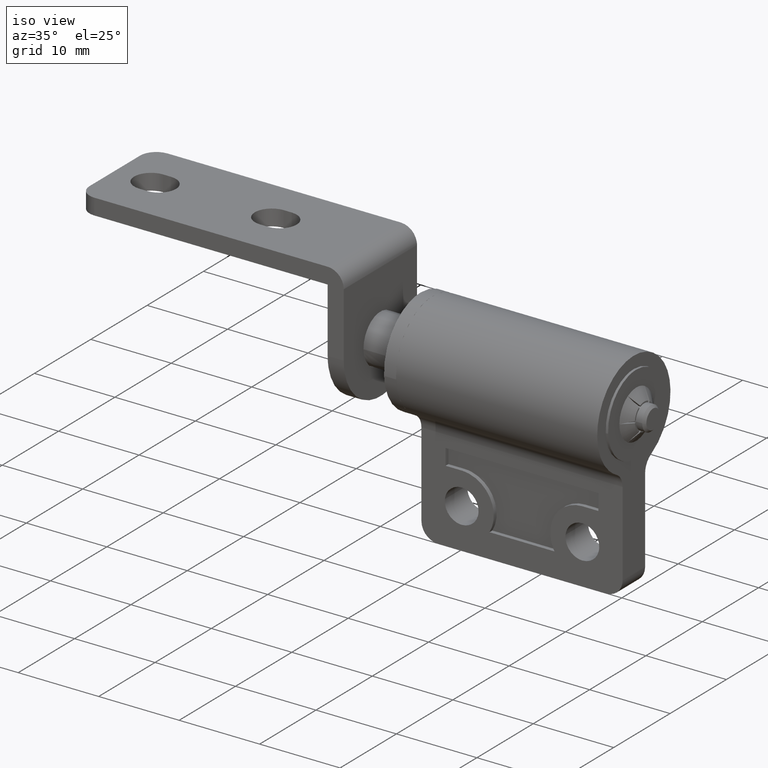
[diagram: clean part render]
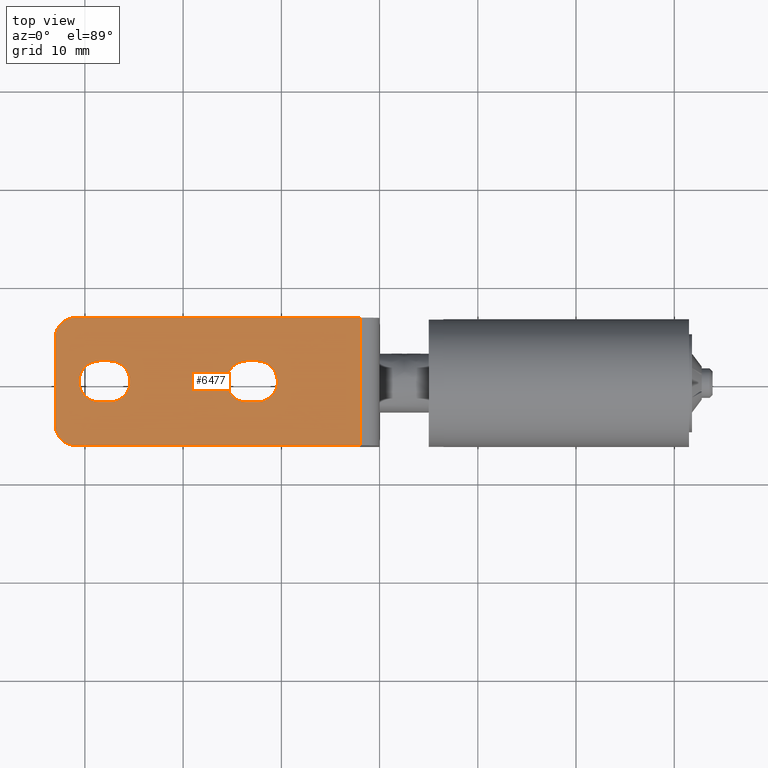
[diagram: tour spotlight — one face highlighted and labeled with its STEP entity id]
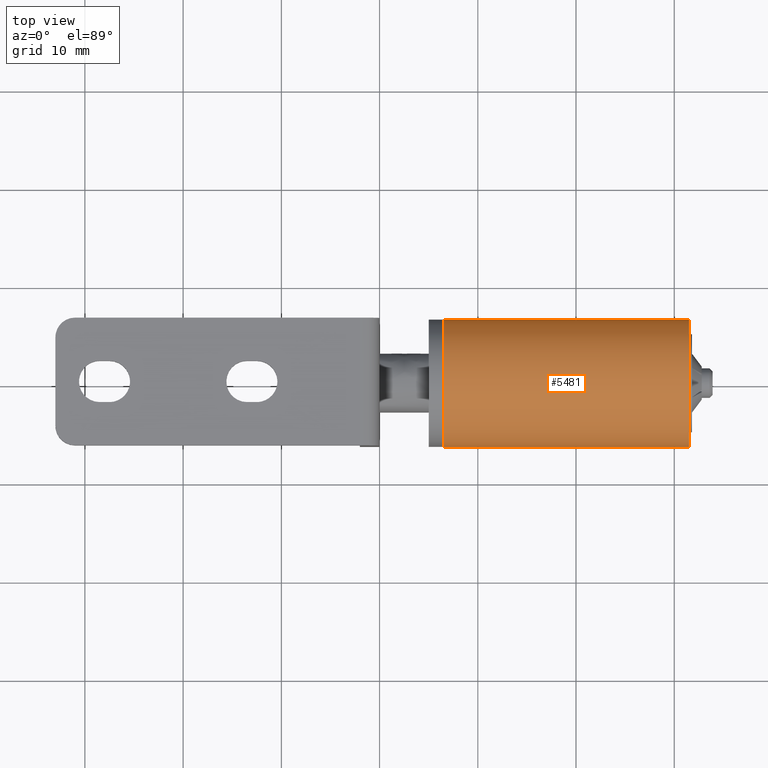
[diagram: tour spotlight — one face highlighted and labeled with its STEP entity id]
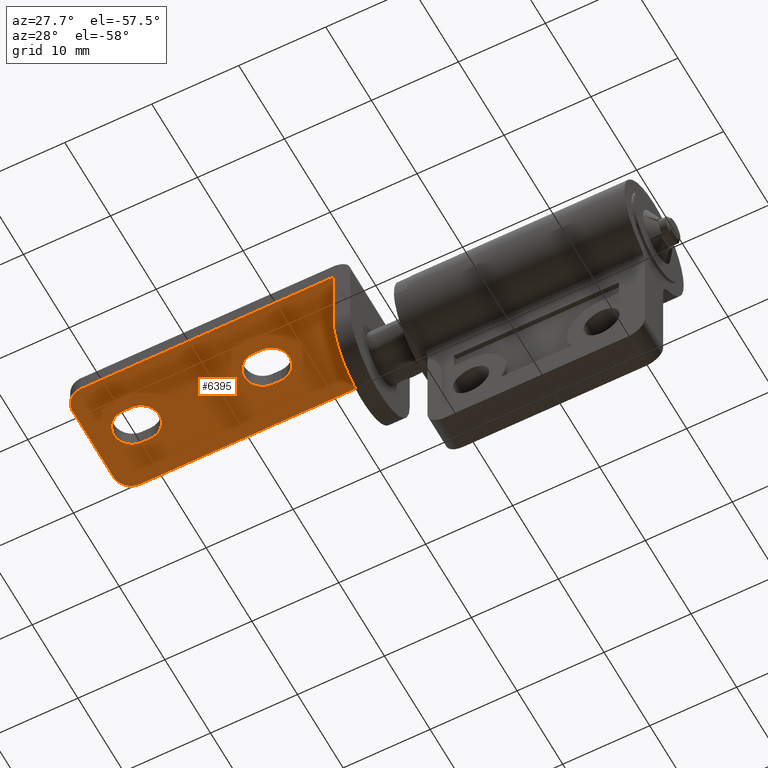
[diagram: tour spotlight — one face highlighted and labeled with its STEP entity id]
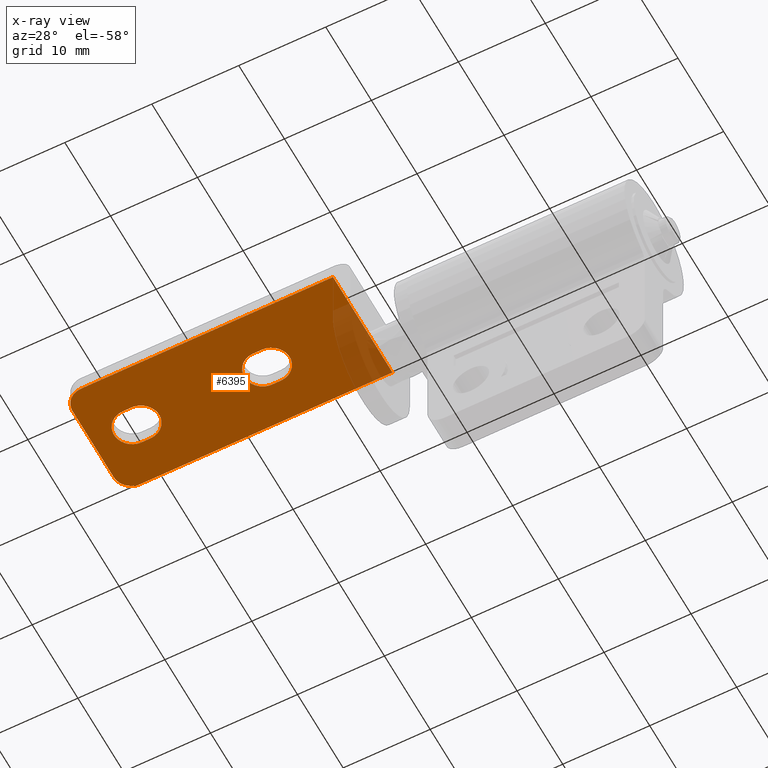
[diagram: x-ray of the same camera — body ghosted, this tour face saturated]
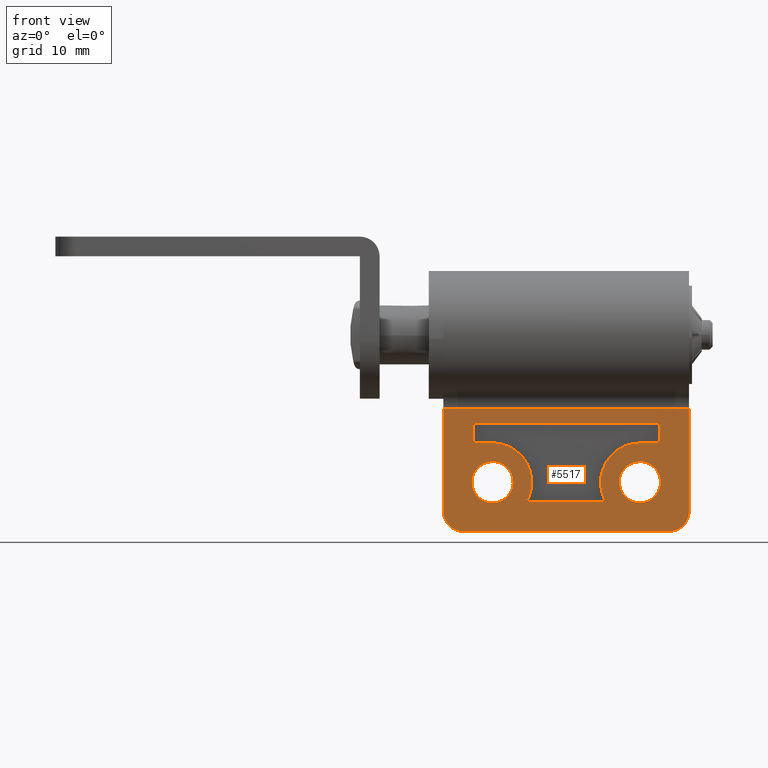
[diagram: tour spotlight — one face highlighted and labeled with its STEP entity id]
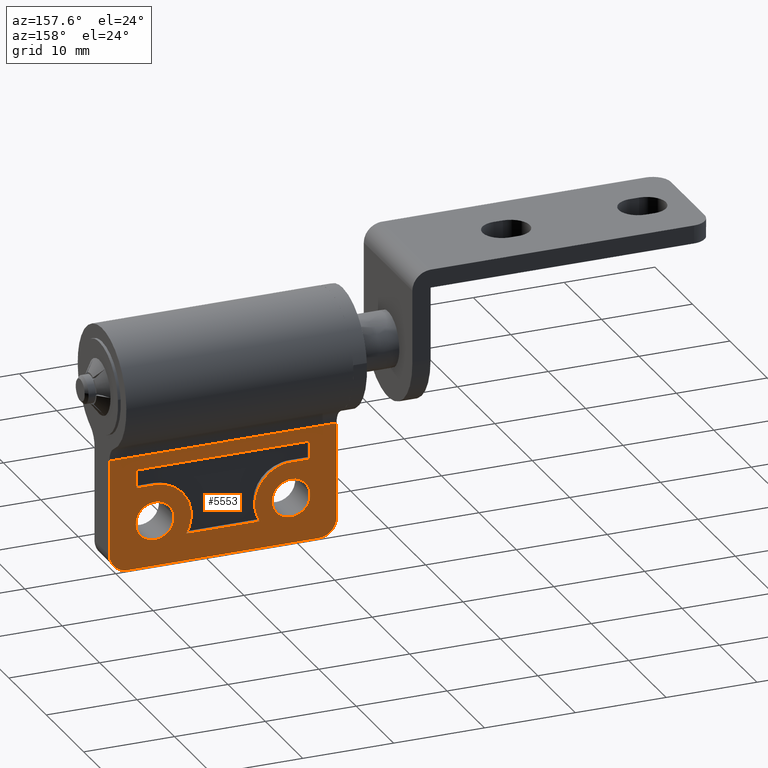
[diagram: tour spotlight — one face highlighted and labeled with its STEP entity id]
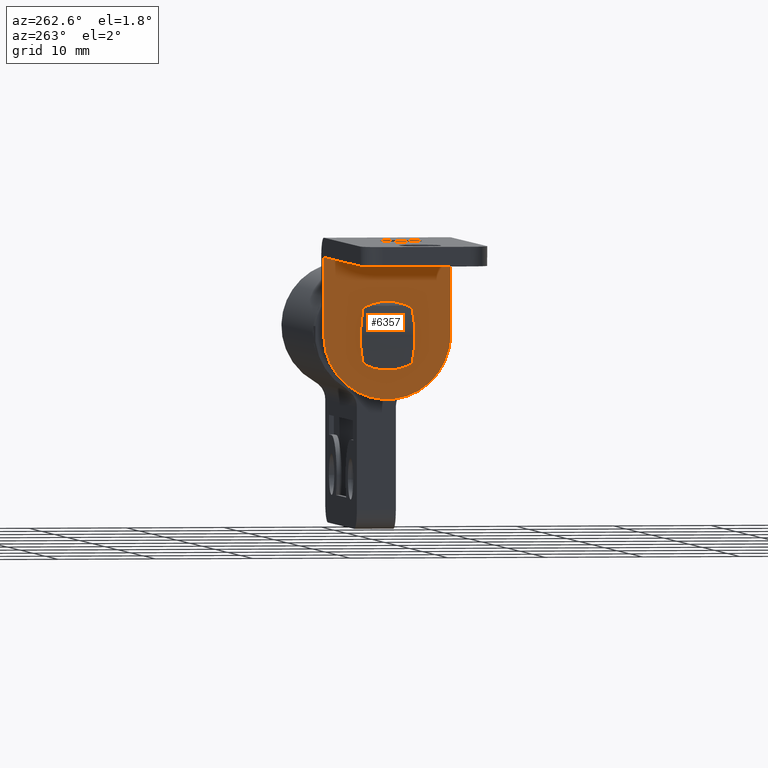
[diagram: tour spotlight — one face highlighted and labeled with its STEP entity id]
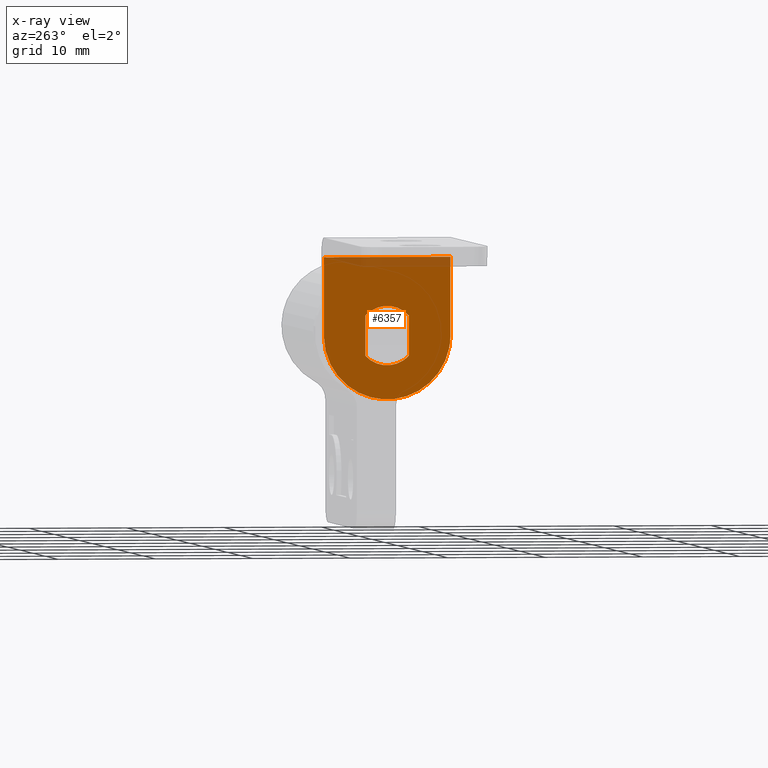
[diagram: x-ray of the same camera — body ghosted, this tour face saturated]
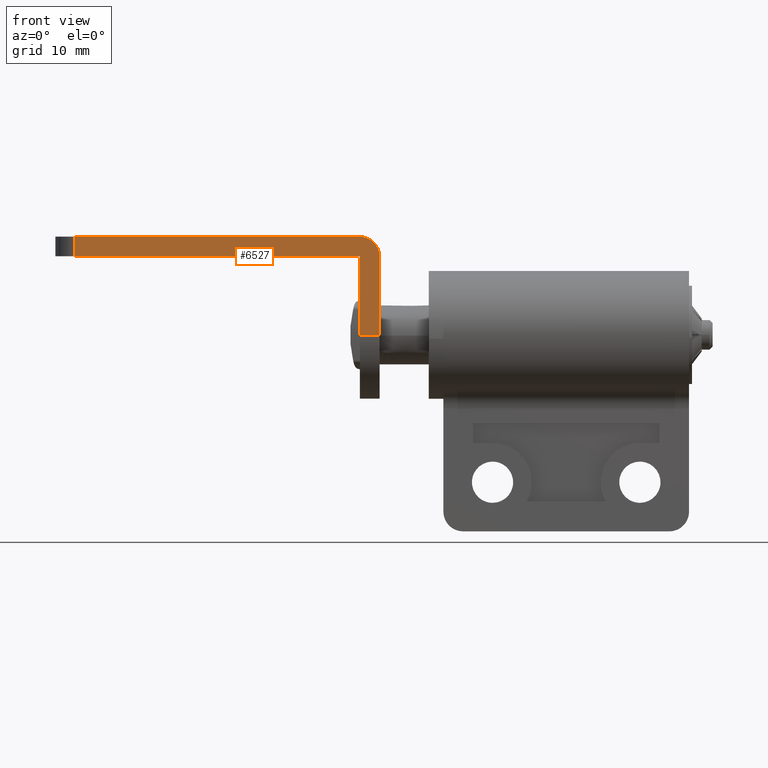
[diagram: tour spotlight — one face highlighted and labeled with its STEP entity id]
A machine part: a face-by-face anatomy tour. The part has 137 B-rep faces; the first image is the clean iso view, then the 7 largest visible faces are spotlighted one at a time (largest first), each with its STEP entity span.

Face 1 — top view, entity #6477. In plain terms, the highlighted face is a freeform B-spline surface patch.
Definition (entity closure, byte-faithful):
#5611=CARTESIAN_POINT('',(-2.0,-6.500000000000000,10.0));
#5612=VERTEX_POINT('',#5611);
#5633=CARTESIAN_POINT('',(-2.0,6.500000000000000,10.0));
#5634=VERTEX_POINT('',#5633);
#5648=CARTESIAN_POINT('',(-2.0,-6.500000000000000,10.0));
#5649=CARTESIAN_POINT('',(-2.0,6.500000000000000,10.0));
#5650=QUASI_UNIFORM_CURVE('',1,(#5648,#5649),.UNSPECIFIED.,.F.,.U.);
#5651=EDGE_CURVE('',#5612,#5634,#5650,.T.);
#5670=CARTESIAN_POINT('',(-31.0,6.500000000000000,10.0));
#5671=VERTEX_POINT('',#5670);
#5672=CARTESIAN_POINT('',(-33.0,4.500000000000000,10.0));
#5673=VERTEX_POINT('',#5672);
#5674=CARTESIAN_POINT('',(-31.0,6.500000000000000,10.0));
#5675=CARTESIAN_POINT('',(-33.0,6.500000000000001,10.000000000000002));
#5676=CARTESIAN_POINT('',(-33.0,4.500000000000000,10.0));
#5684=(BOUNDED_CURVE()B_SPLINE_CURVE(2,(#5674,#5675,#5676),.UNSPECIFIED.,.F.,.U.)CURVE()GEOMETRIC_REPRESENTATION_ITEM()QUASI_UNIFORM_CURVE()RATIONAL_B_SPLINE_CURVE((1.0,0.707106781186548,1.0))REPRESENTATION_ITEM(''));
#5685=EDGE_CURVE('',#5671,#5673,#5684,.T.);
#5748=CARTESIAN_POINT('',(-31.0,-6.500000000000000,10.0));
#5749=VERTEX_POINT('',#5748);
#5755=CARTESIAN_POINT('',(-33.0,-4.500000000000000,10.0));
#5756=VERTEX_POINT('',#5755);
#5757=CARTESIAN_POINT('',(-33.0,-4.500000000000000,10.0));
#5758=CARTESIAN_POINT('',(-33.0,-6.500000000000001,10.000000000000002));
#5759=CARTESIAN_POINT('',(-31.0,-6.500000000000000,10.0));
#5767=(BOUNDED_CURVE()B_SPLINE_CURVE(2,(#5757,#5758,#5759),.UNSPECIFIED.,.F.,.U.)CURVE()GEOMETRIC_REPRESENTATION_ITEM()QUASI_UNIFORM_CURVE()RATIONAL_B_SPLINE_CURVE((1.0,0.707106781186548,1.0))REPRESENTATION_ITEM(''));
#5768=EDGE_CURVE('',#5756,#5749,#5767,.T.);
#5962=CARTESIAN_POINT('',(-27.500007000000100,2.100000000000000,10.0));
#5963=VERTEX_POINT('',#5962);
#5969=CARTESIAN_POINT('',(-28.500006999999950,2.100000000000000,10.0));
#5970=VERTEX_POINT('',#5969);
#5971=CARTESIAN_POINT('',(-28.500006999999950,2.100000000000000,10.0));
#5972=CARTESIAN_POINT('',(-27.500007000000100,2.100000000000000,10.0));
#5973=QUASI_UNIFORM_CURVE('',1,(#5971,#5972),.UNSPECIFIED.,.F.,.U.);
#5974=EDGE_CURVE('',#5970,#5963,#5973,.T.);
#6020=CARTESIAN_POINT('',(-28.500006999999950,-2.100000000000000,10.0));
#6021=VERTEX_POINT('',#6020);
#6022=CARTESIAN_POINT('',(-28.500006999999950,-2.100000000000000,10.0));
#6023=CARTESIAN_POINT('',(-30.600006999999952,-2.100000000000000,10.000000000000002));
#6024=CARTESIAN_POINT('',(-30.600006999999952,0.0,10.0));
#6025=CARTESIAN_POINT('',(-30.600006999999952,2.100000000000000,10.000000000000002));
#6026=CARTESIAN_POINT('',(-28.500006999999950,2.100000000000000,10.0));
#6034=(BOUNDED_CURVE()B_SPLINE_CURVE(2,(#6022,#6023,#6024,#6025,#6026),.UNSPECIFIED.,.F.,.U.)B_SPLINE_CURVE_WITH_KNOTS((3,2,3),(0.0,0.500000000000000,1.0),.UNSPECIFIED.)CURVE()GEOMETRIC_REPRESENTATION_ITEM()RATIONAL_B_SPLINE_CURVE((1.0,0.707106781186548,1.0,0.707106781186548,1.0))REPRESENTATION_ITEM(''));
#6035=EDGE_CURVE('',#6021,#5970,#6034,.T.);
#6058=CARTESIAN_POINT('',(-27.500007000000100,-2.100000000000000,10.0));
#6059=VERTEX_POINT('',#6058);
#6060=CARTESIAN_POINT('',(-27.500007000000100,-2.100000000000000,10.0));
#6061=CARTESIAN_POINT('',(-28.500006999999950,-2.100000000000000,10.0));
#6062=QUASI_UNIFORM_CURVE('',1,(#6060,#6061),.UNSPECIFIED.,.F.,.U.);
#6063=EDGE_CURVE('',#6059,#6021,#6062,.T.);
#6107=CARTESIAN_POINT('',(-27.500007000000100,2.100000000000000,10.0));
#6108=CARTESIAN_POINT('',(-25.400007000000102,2.100000000000000,10.000000000000002));
#6109=CARTESIAN_POINT('',(-25.400007000000102,0.0,10.0));
#6110=CARTESIAN_POINT('',(-25.400007000000102,-2.100000000000000,10.000000000000002));
#6111=CARTESIAN_POINT('',(-27.500007000000100,-2.100000000000000,10.0));
#6119=(BOUNDED_CURVE()B_SPLINE_CURVE(2,(#6107,#6108,#6109,#6110,#6111),.UNSPECIFIED.,.F.,.U.)B_SPLINE_CURVE_WITH_KNOTS((3,2,3),(0.0,0.500000000000000,1.0),.UNSPECIFIED.)CURVE()GEOMETRIC_REPRESENTATION_ITEM()RATIONAL_B_SPLINE_CURVE((1.0,0.707106781186548,1.0,0.707106781186548,1.0))REPRESENTATION_ITEM(''));
#6120=EDGE_CURVE('',#5963,#6059,#6119,.T.);
#6140=CARTESIAN_POINT('',(-12.500006999999981,2.100000000000000,10.0));
#6141=VERTEX_POINT('',#6140);
#6147=CARTESIAN_POINT('',(-13.500007000000000,2.100000000000000,10.0));
#6148=VERTEX_POINT('',#6147);
#6149=CARTESIAN_POINT('',(-13.500007000000000,2.100000000000000,10.0));
#6150=CARTESIAN_POINT('',(-12.500006999999981,2.100000000000000,10.0));
#6151=QUASI_UNIFORM_CURVE('',1,(#6149,#6150),.UNSPECIFIED.,.F.,.U.);
#6152=EDGE_CURVE('',#6148,#6141,#6151,.T.);
#6200=CARTESIAN_POINT('',(-13.500007000000000,-2.100000000000000,10.0));
#6201=VERTEX_POINT('',#6200);
#6202=CARTESIAN_POINT('',(-13.500007000000000,-2.100000000000000,10.0));
#6203=CARTESIAN_POINT('',(-15.600007000000000,-2.100000000000000,10.000000000000002));
#6204=CARTESIAN_POINT('',(-15.600007000000000,0.0,10.0));
#6205=CARTESIAN_POINT('',(-15.600007000000000,2.100000000000000,10.000000000000002));
#6206=CARTESIAN_POINT('',(-13.500007000000000,2.100000000000000,10.0));
#6214=(BOUNDED_CURVE()B_SPLINE_CURVE(2,(#6202,#6203,#6204,#6205,#6206),.UNSPECIFIED.,.F.,.U.)B_SPLINE_CURVE_WITH_KNOTS((3,2,3),(0.0,0.500000000000000,1.0),.UNSPECIFIED.)CURVE()GEOMETRIC_REPRESENTATION_ITEM()RATIONAL_B_SPLINE_CURVE((1.0,0.707106781186548,1.0,0.707106781186548,1.0))REPRESENTATION_ITEM(''));
#6215=EDGE_CURVE('',#6201,#6148,#6214,.T.);
#6238=CARTESIAN_POINT('',(-12.500007000000000,-2.100000000000000,10.0));
#6239=VERTEX_POINT('',#6238);
#6240=CARTESIAN_POINT('',(-12.500007000000000,-2.100000000000000,10.0));
#6241=CARTESIAN_POINT('',(-13.500007000000000,-2.100000000000000,10.0));
#6242=QUASI_UNIFORM_CURVE('',1,(#6240,#6241),.UNSPECIFIED.,.F.,.U.);
#6243=EDGE_CURVE('',#6239,#6201,#6242,.T.);
#6287=CARTESIAN_POINT('',(-12.500007000000000,2.100000000000000,10.0));
#6288=CARTESIAN_POINT('',(-10.400007000000000,2.100000000000000,10.000000000000002));
#6289=CARTESIAN_POINT('',(-10.400007000000000,0.0,10.0));
#6290=CARTESIAN_POINT('',(-10.400007000000000,-2.100000000000000,10.000000000000002));
#6291=CARTESIAN_POINT('',(-12.500007000000000,-2.100000000000000,10.0));
#6299=(BOUNDED_CURVE()B_SPLINE_CURVE(2,(#6287,#6288,#6289,#6290,#6291),.UNSPECIFIED.,.F.,.U.)B_SPLINE_CURVE_WITH_KNOTS((3,2,3),(0.0,0.500000000000000,1.0),.UNSPECIFIED.)CURVE()GEOMETRIC_REPRESENTATION_ITEM()RATIONAL_B_SPLINE_CURVE((1.0,0.707106781186548,1.0,0.707106781186548,1.0))REPRESENTATION_ITEM(''));
#6300=EDGE_CURVE('',#6141,#6239,#6299,.T.);
#6440=CARTESIAN_POINT('',(-34.548449939915990,-7.149349974803478,10.0));
#6441=CARTESIAN_POINT('',(-34.548449939915990,7.149350323490650,10.0));
#6442=CARTESIAN_POINT('',(-0.451549228599219,-7.149349974803478,10.0));
#6443=CARTESIAN_POINT('',(-0.451549228599219,7.149350323490651,10.0));
#6444=B_SPLINE_SURFACE_WITH_KNOTS('',1,1,((#6440,#6442),(#6441,#6443)),.UNSPECIFIED.,.F.,.F.,.U.,(2,2),(2,2),(0.0,14.298700298294129),(0.0,34.096900711316771),.UNSPECIFIED.);
#6445=CARTESIAN_POINT('',(-31.0,-6.500000000000000,10.0));
#6446=CARTESIAN_POINT('',(-2.0,-6.500000000000000,10.0));
#6447=QUASI_UNIFORM_CURVE('',1,(#6445,#6446),.UNSPECIFIED.,.F.,.U.);
#6448=EDGE_CURVE('',#5749,#5612,#6447,.T.);
#6449=ORIENTED_EDGE('',*,*,#6448,.T.);
#6450=ORIENTED_EDGE('',*,*,#5651,.T.);
#6451=CARTESIAN_POINT('',(-31.0,6.500000000000000,10.0));
#6452=CARTESIAN_POINT('',(-2.0,6.500000000000000,10.0));
#6453=QUASI_UNIFORM_CURVE('',1,(#6451,#6452),.UNSPECIFIED.,.F.,.U.);
#6454=EDGE_CURVE('',#5671,#5634,#6453,.T.);
#6455=ORIENTED_EDGE('',*,*,#6454,.F.);
#6456=ORIENTED_EDGE('',*,*,#5685,.T.);
#6457=CARTESIAN_POINT('',(-33.0,-4.500000000000000,10.0));
#6458=CARTESIAN_POINT('',(-33.0,4.500000000000000,10.0));
#6459=QUASI_UNIFORM_CURVE('',1,(#6457,#6458),.UNSPECIFIED.,.F.,.U.);
#6460=EDGE_CURVE('',#5756,#5673,#6459,.T.);
#6461=ORIENTED_EDGE('',*,*,#6460,.F.);
#6462=ORIENTED_EDGE('',*,*,#5768,.T.);
#6463=EDGE_LOOP('',(#6449,#6450,#6455,#6456,#6461,#6462));
#6464=FACE_OUTER_BOUND('',#6463,.T.);
#6465=ORIENTED_EDGE('',*,*,#6152,.T.);
#6466=ORIENTED_EDGE('',*,*,#6300,.T.);
#6467=ORIENTED_EDGE('',*,*,#6243,.T.);
#6468=ORIENTED_EDGE('',*,*,#6215,.T.);
#6469=EDGE_LOOP('',(#6465,#6466,#6467,#6468));
#6470=FACE_BOUND('',#6469,.T.);
#6471=ORIENTED_EDGE('',*,*,#5974,.T.);
#6472=ORIENTED_EDGE('',*,*,#6120,.T.);
#6473=ORIENTED_EDGE('',*,*,#6063,.T.);
#6474=ORIENTED_EDGE('',*,*,#6035,.T.);
#6475=EDGE_LOOP('',(#6471,#6472,#6473,#6474));
#6476=FACE_BOUND('',#6475,.T.);
#6477=ADVANCED_FACE('',(#6464,#6470,#6476),#6444,.F.);

Face 2 — top view, entity #5481. In plain terms, the highlighted face is a freeform B-spline surface patch.
Definition (entity closure, byte-faithful):
#5239=CARTESIAN_POINT('',(31.500000000000000,3.058823527436040,-5.735294118700780));
#5240=VERTEX_POINT('',#5239);
#5254=CARTESIAN_POINT('',(31.500000000000000,-3.058823527436040,-5.735294118700780));
#5255=VERTEX_POINT('',#5254);
#5256=CARTESIAN_POINT('',(31.500000000000000,3.058823527436040,-5.735294118700779));
#5257=CARTESIAN_POINT('',(31.500000000000007,7.536805859902648,-3.347036876699971));
#5258=CARTESIAN_POINT('',(31.500000000000000,6.305926251216195,1.576481561650014));
#5259=CARTESIAN_POINT('',(31.500000000000007,5.075046642529742,6.500000000000000));
#5260=CARTESIAN_POINT('',(31.500000000000000,0.0,6.500000000000000));
#5261=CARTESIAN_POINT('',(31.500000000000007,-5.075046642529739,6.500000000000002));
#5262=CARTESIAN_POINT('',(31.500000000000000,-6.305926251216194,1.576481561650017));
#5263=CARTESIAN_POINT('',(31.500000000000007,-7.536805859902648,-3.347036876699968));
#5264=CARTESIAN_POINT('',(31.500000000000000,-3.058823527436043,-5.735294118700777));
#5272=(BOUNDED_CURVE()B_SPLINE_CURVE(2,(#5256,#5257,#5258,#5259,#5260,#5261,#5262,#5263,#5264),.UNSPECIFIED.,.F.,.U.)B_SPLINE_CURVE_WITH_KNOTS((3,2,2,2,3),(0.0,0.250000000000000,0.500000000000000,0.750000000000000,1.0),.UNSPECIFIED.)CURVE()GEOMETRIC_REPRESENTATION_ITEM()RATIONAL_B_SPLINE_CURVE((1.0,0.788205437963109,1.0,0.788205437963109,1.0,0.788205437963109,1.0,0.788205437963109,1.0))REPRESENTATION_ITEM(''));
#5273=EDGE_CURVE('',#5240,#5255,#5272,.T.);
#5317=CARTESIAN_POINT('',(6.500000000000000,-3.058823527436040,-5.735294118700780));
#5318=VERTEX_POINT('',#5317);
#5332=CARTESIAN_POINT('',(6.500000000000000,3.058823527436040,-5.735294118700780));
#5333=VERTEX_POINT('',#5332);
#5334=CARTESIAN_POINT('',(6.500000000000000,3.058823527436040,-5.735294118700779));
#5335=CARTESIAN_POINT('',(6.500000000000000,7.536805859902648,-3.347036876699971));
#5336=CARTESIAN_POINT('',(6.500000000000000,6.305926251216195,1.576481561650014));
#5337=CARTESIAN_POINT('',(6.500000000000000,5.075046642529742,6.500000000000000));
#5338=CARTESIAN_POINT('',(6.500000000000000,0.0,6.500000000000000));
#5339=CARTESIAN_POINT('',(6.500000000000000,-5.075046642529739,6.500000000000002));
#5340=CARTESIAN_POINT('',(6.500000000000000,-6.305926251216194,1.576481561650017));
#5341=CARTESIAN_POINT('',(6.500000000000000,-7.536805859902648,-3.347036876699968));
#5342=CARTESIAN_POINT('',(6.500000000000000,-3.058823527436043,-5.735294118700777));
#5350=(BOUNDED_CURVE()B_SPLINE_CURVE(2,(#5334,#5335,#5336,#5337,#5338,#5339,#5340,#5341,#5342),.UNSPECIFIED.,.F.,.U.)B_SPLINE_CURVE_WITH_KNOTS((3,2,2,2,3),(0.0,0.250000000000000,0.500000000000000,0.750000000000000,1.0),.UNSPECIFIED.)CURVE()GEOMETRIC_REPRESENTATION_ITEM()RATIONAL_B_SPLINE_CURVE((1.0,0.788205437963109,1.0,0.788205437963109,1.0,0.788205437963109,1.0,0.788205437963109,1.0))REPRESENTATION_ITEM(''));
#5351=EDGE_CURVE('',#5333,#5318,#5350,.T.);
#5396=CARTESIAN_POINT('',(6.500000000000000,3.058823527436040,-5.735294118700780));
#5397=CARTESIAN_POINT('',(31.500000000000000,3.058823527436040,-5.735294118700780));
#5398=QUASI_UNIFORM_CURVE('',1,(#5396,#5397),.UNSPECIFIED.,.F.,.U.);
#5399=EDGE_CURVE('',#5333,#5240,#5398,.T.);
#5439=CARTESIAN_POINT('',(6.500000000000000,-3.058823527436040,-5.735294118700780));
#5440=CARTESIAN_POINT('',(31.500000000000000,-3.058823527436040,-5.735294118700780));
#5441=QUASI_UNIFORM_CURVE('',1,(#5439,#5440),.UNSPECIFIED.,.F.,.U.);
#5442=EDGE_CURVE('',#5318,#5255,#5441,.T.);
#5453=CARTESIAN_POINT('',(5.874999999999998,-2.892924080991763,-5.820737948200206));
#5454=CARTESIAN_POINT('',(32.140625000000000,-2.892924080991763,-5.820737948200206));
#5455=CARTESIAN_POINT('',(5.874999999999997,-10.254447393086890,-2.162038956446567));
#5456=CARTESIAN_POINT('',(32.140625000000000,-10.254447393086890,-2.162038956446567));
#5457=CARTESIAN_POINT('',(5.874999999999998,-4.996684997555850,4.157299488273640));
#5458=CARTESIAN_POINT('',(32.140625000000000,-4.996684997555850,4.157299488273640));
#5459=CARTESIAN_POINT('',(5.874999999999997,0.261077397975192,10.476637932993848));
#5460=CARTESIAN_POINT('',(32.140625000000000,0.261077397975192,10.476637932993848));
#5461=CARTESIAN_POINT('',(5.874999999999998,5.197553804065822,3.903259465349553));
#5462=CARTESIAN_POINT('',(32.140625000000000,5.197553804065822,3.903259465349553));
#5463=CARTESIAN_POINT('',(5.874999999999997,10.134030210156453,-2.670119002294742));
#5464=CARTESIAN_POINT('',(32.140625000000000,10.134030210156453,-2.670119002294742));
#5465=CARTESIAN_POINT('',(5.874999999999998,2.599408205045206,-5.957606648944157));
#5466=CARTESIAN_POINT('',(32.140625000000000,2.599408205045206,-5.957606648944157));
#5474=(BOUNDED_SURFACE()B_SPLINE_SURFACE(1,2,((#5453,#5455,#5457,#5459,#5461,#5463,#5465),(#5454,#5456,#5458,#5460,#5462,#5464,#5466)),.UNSPECIFIED.,.F.,.F.,.U.)B_SPLINE_SURFACE_WITH_KNOTS((2,2),(3,2,2,3),(0.0,26.265625000000000),(0.0,12.587557424720201,25.175114849440391,37.762672274160593),.UNSPECIFIED.)GEOMETRIC_REPRESENTATION_ITEM()RATIONAL_B_SPLINE_SURFACE(((1.0,0.620235491268260,1.0,0.620235491268260,1.0,0.620235491268260,1.0),(1.0,0.620235491268260,1.0,0.620235491268260,1.0,0.620235491268260,1.0)))REPRESENTATION_ITEM('')SURFACE());
#5475=ORIENTED_EDGE('',*,*,#5273,.F.);
#5476=ORIENTED_EDGE('',*,*,#5399,.F.);
#5477=ORIENTED_EDGE('',*,*,#5351,.T.);
#5478=ORIENTED_EDGE('',*,*,#5442,.T.);
#5479=EDGE_LOOP('',(#5475,#5476,#5477,#5478));
#5480=FACE_OUTER_BOUND('',#5479,.T.);
#5481=ADVANCED_FACE('',(#5480),#5474,.T.);

Face 3 — auxiliary view, entity #6395. An x-ray twin of the same camera follows (body ghosted, this face saturated) — the face is partly hidden behind the body. In plain terms, the highlighted face is a freeform B-spline surface patch.
Definition (entity closure, byte-faithful):
#5687=CARTESIAN_POINT('',(-31.0,6.500000000000000,8.0));
#5688=VERTEX_POINT('',#5687);
#5694=CARTESIAN_POINT('',(-33.0,4.500000000000000,8.0));
#5695=VERTEX_POINT('',#5694);
#5696=CARTESIAN_POINT('',(-33.0,4.500000000000000,8.0));
#5697=CARTESIAN_POINT('',(-33.0,6.500000000000001,8.0));
#5698=CARTESIAN_POINT('',(-31.0,6.500000000000000,8.0));
#5706=(BOUNDED_CURVE()B_SPLINE_CURVE(2,(#5696,#5697,#5698),.UNSPECIFIED.,.F.,.U.)CURVE()GEOMETRIC_REPRESENTATION_ITEM()QUASI_UNIFORM_CURVE()RATIONAL_B_SPLINE_CURVE((1.0,0.707106781186548,1.0))REPRESENTATION_ITEM(''));
#5707=EDGE_CURVE('',#5695,#5688,#5706,.T.);
#5731=CARTESIAN_POINT('',(-31.0,-6.500000000000000,8.0));
#5732=VERTEX_POINT('',#5731);
#5733=CARTESIAN_POINT('',(-33.0,-4.500000000000000,8.0));
#5734=VERTEX_POINT('',#5733);
#5735=CARTESIAN_POINT('',(-31.0,-6.500000000000000,8.0));
#5736=CARTESIAN_POINT('',(-33.0,-6.500000000000001,8.0));
#5737=CARTESIAN_POINT('',(-33.0,-4.500000000000000,8.0));
#5745=(BOUNDED_CURVE()B_SPLINE_CURVE(2,(#5735,#5736,#5737),.UNSPECIFIED.,.F.,.U.)CURVE()GEOMETRIC_REPRESENTATION_ITEM()QUASI_UNIFORM_CURVE()RATIONAL_B_SPLINE_CURVE((1.0,0.707106781186548,1.0))REPRESENTATION_ITEM(''));
#5746=EDGE_CURVE('',#5732,#5734,#5745,.T.);
#5953=CARTESIAN_POINT('',(-28.500007000000000,2.100000000000000,8.0));
#5954=VERTEX_POINT('',#5953);
#5955=CARTESIAN_POINT('',(-27.500007000000100,2.100000000000000,7.999999999999789));
#5956=VERTEX_POINT('',#5955);
#5957=CARTESIAN_POINT('',(-28.500007000000000,2.100000000000000,8.0));
#5958=CARTESIAN_POINT('',(-27.500007000000100,2.100000000000000,7.999999999999789));
#5959=QUASI_UNIFORM_CURVE('',1,(#5957,#5958),.UNSPECIFIED.,.F.,.U.);
#5960=EDGE_CURVE('',#5954,#5956,#5959,.T.);
#6002=CARTESIAN_POINT('',(-28.500006999999950,-2.100000000000000,7.999999999999789));
#6003=VERTEX_POINT('',#6002);
#6004=CARTESIAN_POINT('',(-28.500006999999950,-2.100000000000000,7.999999999999789));
#6005=CARTESIAN_POINT('',(-30.600006999999952,-2.100000000000000,7.999999999999789));
#6006=CARTESIAN_POINT('',(-30.600006999999952,0.0,7.999999999999789));
#6007=CARTESIAN_POINT('',(-30.600006999999952,2.100000000000000,7.999999999999789));
#6008=CARTESIAN_POINT('',(-28.500007000000000,2.100000000000000,8.0));
#6016=(BOUNDED_CURVE()B_SPLINE_CURVE(2,(#6004,#6005,#6006,#6007,#6008),.UNSPECIFIED.,.F.,.U.)B_SPLINE_CURVE_WITH_KNOTS((3,2,3),(0.0,0.500000000000000,1.0),.UNSPECIFIED.)CURVE()GEOMETRIC_REPRESENTATION_ITEM()RATIONAL_B_SPLINE_CURVE((1.0,0.707106781186548,1.0,0.707106781186548,1.0))REPRESENTATION_ITEM(''));
#6017=EDGE_CURVE('',#6003,#5954,#6016,.T.);
#6050=CARTESIAN_POINT('',(-27.500007000000100,-2.100000000000000,7.999999999999789));
#6051=VERTEX_POINT('',#6050);
#6052=CARTESIAN_POINT('',(-27.500007000000100,-2.100000000000000,7.999999999999789));
#6053=CARTESIAN_POINT('',(-28.500006999999950,-2.100000000000000,7.999999999999789));
#6054=QUASI_UNIFORM_CURVE('',1,(#6052,#6053),.UNSPECIFIED.,.F.,.U.);
#6055=EDGE_CURVE('',#6051,#6003,#6054,.T.);
#6091=CARTESIAN_POINT('',(-27.500007000000100,2.100000000000000,7.999999999999789));
#6092=CARTESIAN_POINT('',(-25.400007000000102,2.100000000000000,7.999999999999789));
#6093=CARTESIAN_POINT('',(-25.400007000000102,0.0,7.999999999999789));
#6094=CARTESIAN_POINT('',(-25.400007000000102,-2.100000000000000,7.999999999999789));
#6095=CARTESIAN_POINT('',(-27.500007000000100,-2.100000000000000,7.999999999999789));
#6103=(BOUNDED_CURVE()B_SPLINE_CURVE(2,(#6091,#6092,#6093,#6094,#6095),.UNSPECIFIED.,.F.,.U.)B_SPLINE_CURVE_WITH_KNOTS((3,2,3),(0.0,0.500000000000000,1.0),.UNSPECIFIED.)CURVE()GEOMETRIC_REPRESENTATION_ITEM()RATIONAL_B_SPLINE_CURVE((1.0,0.707106781186548,1.0,0.707106781186548,1.0))REPRESENTATION_ITEM(''));
#6104=EDGE_CURVE('',#5956,#6051,#6103,.T.);
#6131=CARTESIAN_POINT('',(-13.500006999999981,2.100000000000000,8.0));
#6132=VERTEX_POINT('',#6131);
#6133=CARTESIAN_POINT('',(-12.500007000000000,2.100000000000000,7.999999999999789));
#6134=VERTEX_POINT('',#6133);
#6135=CARTESIAN_POINT('',(-13.500006999999981,2.100000000000000,8.0));
#6136=CARTESIAN_POINT('',(-12.500007000000000,2.100000000000000,7.999999999999789));
#6137=QUASI_UNIFORM_CURVE('',1,(#6135,#6136),.UNSPECIFIED.,.F.,.U.);
#6138=EDGE_CURVE('',#6132,#6134,#6137,.T.);
#6180=CARTESIAN_POINT('',(-13.500007000000000,-2.100000000000000,7.999999999999789));
#6181=VERTEX_POINT('',#6180);
#6182=CARTESIAN_POINT('',(-13.500007000000000,-2.100000000000000,7.999999999999789));
#6183=CARTESIAN_POINT('',(-14.712442565298216,-2.100000000000000,7.999999999999790));
#6184=CARTESIAN_POINT('',(-15.318660347947329,-1.049999999999994,7.999999999999789));
#6185=CARTESIAN_POINT('',(-15.924878130596431,1.062518E-014,7.999999999999790));
#6186=CARTESIAN_POINT('',(-15.318660347947320,1.050000000000011,7.999999999999789));
#6187=CARTESIAN_POINT('',(-14.712442565298204,2.100000000000000,7.999999999999790));
#6188=CARTESIAN_POINT('',(-13.500006999999981,2.100000000000000,8.0));
#6196=(BOUNDED_CURVE()B_SPLINE_CURVE(2,(#6182,#6183,#6184,#6185,#6186,#6187,#6188),.UNSPECIFIED.,.F.,.U.)B_SPLINE_CURVE_WITH_KNOTS((3,2,2,3),(0.0,0.333333333333333,0.666666666666667,1.0),.UNSPECIFIED.)CURVE()GEOMETRIC_REPRESENTATION_ITEM()RATIONAL_B_SPLINE_CURVE((1.0,0.866025403784438,1.0,0.866025403784438,1.0,0.866025403784438,1.0))REPRESENTATION_ITEM(''));
#6197=EDGE_CURVE('',#6181,#6132,#6196,.T.);
#6230=CARTESIAN_POINT('',(-12.500007000000000,-2.100000000000000,7.999999999999789));
#6231=VERTEX_POINT('',#6230);
#6232=CARTESIAN_POINT('',(-12.500007000000000,-2.100000000000000,7.999999999999789));
#6233=CARTESIAN_POINT('',(-13.500007000000000,-2.100000000000000,7.999999999999789));
#6234=QUASI_UNIFORM_CURVE('',1,(#6232,#6233),.UNSPECIFIED.,.F.,.U.);
#6235=EDGE_CURVE('',#6231,#6181,#6234,.T.);
#6271=CARTESIAN_POINT('',(-12.500007000000000,2.100000000000000,7.999999999999789));
#6272=CARTESIAN_POINT('',(-10.400007000000000,2.100000000000000,7.999999999999789));
#6273=CARTESIAN_POINT('',(-10.400007000000000,0.0,7.999999999999789));
#6274=CARTESIAN_POINT('',(-10.400007000000000,-2.100000000000000,7.999999999999789));
#6275=CARTESIAN_POINT('',(-12.500007000000000,-2.100000000000000,7.999999999999789));
#6283=(BOUNDED_CURVE()B_SPLINE_CURVE(2,(#6271,#6272,#6273,#6274,#6275),.UNSPECIFIED.,.F.,.U.)B_SPLINE_CURVE_WITH_KNOTS((3,2,3),(0.0,0.500000000000000,1.0),.UNSPECIFIED.)CURVE()GEOMETRIC_REPRESENTATION_ITEM()RATIONAL_B_SPLINE_CURVE((1.0,0.707106781186548,1.0,0.707106781186548,1.0))REPRESENTATION_ITEM(''));
#6284=EDGE_CURVE('',#6134,#6231,#6283,.T.);
#6330=CARTESIAN_POINT('',(-2.0,-6.500000000000000,8.0));
#6331=VERTEX_POINT('',#6330);
#6337=CARTESIAN_POINT('',(-2.0,6.500000000000000,8.0));
#6338=VERTEX_POINT('',#6337);
#6339=CARTESIAN_POINT('',(-2.0,-6.500000000000000,8.0));
#6340=CARTESIAN_POINT('',(-2.0,6.500000000000000,8.0));
#6341=QUASI_UNIFORM_CURVE('',1,(#6339,#6340),.UNSPECIFIED.,.F.,.U.);
#6342=EDGE_CURVE('',#6331,#6338,#6341,.T.);
#6358=CARTESIAN_POINT('',(-34.548449939915990,-7.149349974803478,8.0));
#6359=CARTESIAN_POINT('',(-34.548449939915990,7.149350323490650,8.0));
#6360=CARTESIAN_POINT('',(-0.451549228599219,-7.149349974803478,8.0));
#6361=CARTESIAN_POINT('',(-0.451549228599219,7.149350323490651,8.0));
#6362=B_SPLINE_SURFACE_WITH_KNOTS('',1,1,((#6358,#6360),(#6359,#6361)),.UNSPECIFIED.,.F.,.F.,.U.,(2,2),(2,2),(0.0,14.298700298294129),(0.0,34.096900711316771),.UNSPECIFIED.);
#6363=CARTESIAN_POINT('',(-31.0,-6.500000000000000,8.0));
#6364=CARTESIAN_POINT('',(-2.0,-6.500000000000000,8.0));
#6365=QUASI_UNIFORM_CURVE('',1,(#6363,#6364),.UNSPECIFIED.,.F.,.U.);
#6366=EDGE_CURVE('',#5732,#6331,#6365,.T.);
#6367=ORIENTED_EDGE('',*,*,#6366,.F.);
#6368=ORIENTED_EDGE('',*,*,#5746,.T.);
#6369=CARTESIAN_POINT('',(-33.0,-4.500000000000000,8.0));
#6370=CARTESIAN_POINT('',(-33.0,4.500000000000000,8.0));
#6371=QUASI_UNIFORM_CURVE('',1,(#6369,#6370),.UNSPECIFIED.,.F.,.U.);
#6372=EDGE_CURVE('',#5734,#5695,#6371,.T.);
#6373=ORIENTED_EDGE('',*,*,#6372,.T.);
#6374=ORIENTED_EDGE('',*,*,#5707,.T.);
#6375=CARTESIAN_POINT('',(-31.0,6.500000000000000,8.0));
#6376=CARTESIAN_POINT('',(-2.0,6.500000000000000,8.0));
#6377=QUASI_UNIFORM_CURVE('',1,(#6375,#6376),.UNSPECIFIED.,.F.,.U.);
#6378=EDGE_CURVE('',#5688,#6338,#6377,.T.);
#6379=ORIENTED_EDGE('',*,*,#6378,.T.);
#6380=ORIENTED_EDGE('',*,*,#6342,.F.);
#6381=EDGE_LOOP('',(#6367,#6368,#6373,#6374,#6379,#6380));
#6382=FACE_OUTER_BOUND('',#6381,.T.);
#6383=ORIENTED_EDGE('',*,*,#6284,.F.);
#6384=ORIENTED_EDGE('',*,*,#6138,.F.);
#6385=ORIENTED_EDGE('',*,*,#6197,.F.);
#6386=ORIENTED_EDGE('',*,*,#6235,.F.);
#6387=EDGE_LOOP('',(#6383,#6384,#6385,#6386));
#6388=FACE_BOUND('',#6387,.T.);
#6389=ORIENTED_EDGE('',*,*,#6104,.F.);
#6390=ORIENTED_EDGE('',*,*,#5960,.F.);
#6391=ORIENTED_EDGE('',*,*,#6017,.F.);
#6392=ORIENTED_EDGE('',*,*,#6055,.F.);
#6393=EDGE_LOOP('',(#6389,#6390,#6391,#6392));
#6394=FACE_BOUND('',#6393,.T.);
#6395=ADVANCED_FACE('',(#6382,#6388,#6394),#6362,.T.);

Face 4 — front view, entity #5517. In plain terms, the highlighted face is a freeform B-spline surface patch.
Definition (entity closure, byte-faithful):
#3961=CARTESIAN_POINT('',(9.414679994649944,-2.0,-14.752128107106021));
#3962=VERTEX_POINT('',#3961);
#3963=CARTESIAN_POINT('',(11.500000000000000,-2.0,-17.100000000000001));
#3964=VERTEX_POINT('',#3963);
#3965=CARTESIAN_POINT('',(9.414679994649944,-2.000000000000000,-14.752128107106021));
#3966=CARTESIAN_POINT('',(9.400000000000000,-2.000000000000000,-14.875629348614989));
#3967=CARTESIAN_POINT('',(9.400000000000000,-2.0,-15.0));
#3968=CARTESIAN_POINT('',(9.400000000000000,-2.000000000000000,-17.099999999999994));
#3969=CARTESIAN_POINT('',(11.500000000000000,-2.0,-17.100000000000001));
#3977=(BOUNDED_CURVE()B_SPLINE_CURVE(2,(#3965,#3966,#3967,#3968,#3969),.UNSPECIFIED.,.F.,.U.)B_SPLINE_CURVE_WITH_KNOTS((3,2,3),(0.229562473497039,0.250000000000000,0.500000000000000),.UNSPECIFIED.)CURVE()GEOMETRIC_REPRESENTATION_ITEM()RATIONAL_B_SPLINE_CURVE((0.956026754151419,0.976055948311850,1.0,0.707106781186548,1.0))REPRESENTATION_ITEM(''));
#3978=EDGE_CURVE('',#3962,#3964,#3977,.T.);
#3980=CARTESIAN_POINT('',(13.596083076666030,-2.0,-15.128201933348381));
#3981=VERTEX_POINT('',#3980);
#3982=CARTESIAN_POINT('',(11.500000000000000,-2.0,-17.100000000000001));
#3983=CARTESIAN_POINT('',(13.475482739887882,-1.999999999999999,-17.099999999999998));
#3984=CARTESIAN_POINT('',(13.596083076666030,-2.000000000000000,-15.128201933348381));
#3992=(BOUNDED_CURVE()B_SPLINE_CURVE(2,(#3982,#3983,#3984),.UNSPECIFIED.,.F.,.U.)B_SPLINE_CURVE_WITH_KNOTS((3,3),(0.500000000000000,0.739332962188432),.UNSPECIFIED.)CURVE()GEOMETRIC_REPRESENTATION_ITEM()RATIONAL_B_SPLINE_CURVE((1.0,0.719603993345887,0.976072041558464))REPRESENTATION_ITEM(''));
#3993=EDGE_CURVE('',#3964,#3981,#3992,.T.);
#4060=CARTESIAN_POINT('',(11.500000000000000,-2.0,-12.900000000000000));
#4061=VERTEX_POINT('',#4060);
#4062=CARTESIAN_POINT('',(11.500000000000000,-2.0,-12.900000000000000));
#4063=CARTESIAN_POINT('',(9.634833495708906,-2.0,-12.900000000000000));
#4064=CARTESIAN_POINT('',(9.414679994649944,-2.000000000000000,-14.752128107106030));
#4072=(BOUNDED_CURVE()B_SPLINE_CURVE(2,(#4062,#4063,#4064),.UNSPECIFIED.,.F.,.U.)B_SPLINE_CURVE_WITH_KNOTS((3,3),(0.0,0.229562473497039),.UNSPECIFIED.)CURVE()GEOMETRIC_REPRESENTATION_ITEM()RATIONAL_B_SPLINE_CURVE((1.0,0.731050832874698,0.956026754151419))REPRESENTATION_ITEM(''));
#4073=EDGE_CURVE('',#4061,#3962,#4072,.T.);
#4107=CARTESIAN_POINT('',(13.596083076666032,-2.000000000000000,-15.128201933348382));
#4108=CARTESIAN_POINT('',(13.600000000000005,-2.000000000000000,-15.064160803253129));
#4109=CARTESIAN_POINT('',(13.600000000000000,-2.0,-15.0));
#4110=CARTESIAN_POINT('',(13.600000000000003,-2.000000000000000,-12.900000000000002));
#4111=CARTESIAN_POINT('',(11.500000000000000,-2.0,-12.900000000000000));
#4119=(BOUNDED_CURVE()B_SPLINE_CURVE(2,(#4107,#4108,#4109,#4110,#4111),.UNSPECIFIED.,.F.,.U.)B_SPLINE_CURVE_WITH_KNOTS((3,2,3),(0.739332962188432,0.750000000000000,1.0),.UNSPECIFIED.)CURVE()GEOMETRIC_REPRESENTATION_ITEM()RATIONAL_B_SPLINE_CURVE((0.976072041558463,0.987502787840660,1.0,0.707106781186548,1.0))REPRESENTATION_ITEM(''));
#4120=EDGE_CURVE('',#3981,#4061,#4119,.T.);
#4147=CARTESIAN_POINT('',(24.414679994649941,-2.0,-14.752128107106021));
#4148=VERTEX_POINT('',#4147);
#4149=CARTESIAN_POINT('',(26.500000000000000,-2.0,-17.100000000000001));
#4150=VERTEX_POINT('',#4149);
#4151=CARTESIAN_POINT('',(24.414679994649941,-2.000000000000000,-14.752128107106032));
#4152=CARTESIAN_POINT('',(24.399999999999999,-2.0,-14.875629348614989));
#4153=CARTESIAN_POINT('',(24.399999999999999,-2.0,-15.0));
#4154=CARTESIAN_POINT('',(24.400000000000002,-2.000000000000000,-17.099999999999994));
#4155=CARTESIAN_POINT('',(26.500000000000000,-2.0,-17.100000000000001));
#4163=(BOUNDED_CURVE()B_SPLINE_CURVE(2,(#4151,#4152,#4153,#4154,#4155),.UNSPECIFIED.,.F.,.U.)B_SPLINE_CURVE_WITH_KNOTS((3,2,3),(0.229562473497039,0.250000000000000,0.500000000000000),.UNSPECIFIED.)CURVE()GEOMETRIC_REPRESENTATION_ITEM()RATIONAL_B_SPLINE_CURVE((0.956026754151419,0.976055948311850,1.0,0.707106781186548,1.0))REPRESENTATION_ITEM(''));
#4164=EDGE_CURVE('',#4148,#4150,#4163,.T.);
#4166=CARTESIAN_POINT('',(28.596083076666030,-2.0,-15.128201933348381));
#4167=VERTEX_POINT('',#4166);
#4168=CARTESIAN_POINT('',(26.500000000000000,-2.0,-17.100000000000001));
#4169=CARTESIAN_POINT('',(28.475482739887887,-1.999999999999999,-17.099999999999998));
#4170=CARTESIAN_POINT('',(28.596083076666037,-2.000000000000000,-15.128201933348381));
#4178=(BOUNDED_CURVE()B_SPLINE_CURVE(2,(#4168,#4169,#4170),.UNSPECIFIED.,.F.,.U.)B_SPLINE_CURVE_WITH_KNOTS((3,3),(0.500000000000000,0.739332962188432),.UNSPECIFIED.)CURVE()GEOMETRIC_REPRESENTATION_ITEM()RATIONAL_B_SPLINE_CURVE((1.0,0.719603993345887,0.976072041558464))REPRESENTATION_ITEM(''));
#4179=EDGE_CURVE('',#4150,#4167,#4178,.T.);
#4246=CARTESIAN_POINT('',(26.500000000000000,-2.0,-12.900000000000000));
#4247=VERTEX_POINT('',#4246);
#4248=CARTESIAN_POINT('',(26.500000000000000,-2.0,-12.900000000000000));
#4249=CARTESIAN_POINT('',(24.634833495708907,-2.000000000000000,-12.900000000000002));
#4250=CARTESIAN_POINT('',(24.414679994649948,-2.000000000000000,-14.752128107106028));
#4258=(BOUNDED_CURVE()B_SPLINE_CURVE(2,(#4248,#4249,#4250),.UNSPECIFIED.,.F.,.U.)B_SPLINE_CURVE_WITH_KNOTS((3,3),(0.0,0.229562473497039),.UNSPECIFIED.)CURVE()GEOMETRIC_REPRESENTATION_ITEM()RATIONAL_B_SPLINE_CURVE((1.0,0.731050832874697,0.956026754151419))REPRESENTATION_ITEM(''));
#4259=EDGE_CURVE('',#4247,#4148,#4258,.T.);
#4293=CARTESIAN_POINT('',(28.596083076666030,-2.0,-15.128201933348379));
#4294=CARTESIAN_POINT('',(28.600000000000005,-2.0,-15.064160803253127));
#4295=CARTESIAN_POINT('',(28.600000000000001,-2.0,-15.0));
#4296=CARTESIAN_POINT('',(28.600000000000012,-2.000000000000000,-12.900000000000002));
#4297=CARTESIAN_POINT('',(26.500000000000000,-2.0,-12.900000000000000));
#4305=(BOUNDED_CURVE()B_SPLINE_CURVE(2,(#4293,#4294,#4295,#4296,#4297),.UNSPECIFIED.,.F.,.U.)B_SPLINE_CURVE_WITH_KNOTS((3,2,3),(0.739332962188432,0.750000000000000,1.0),.UNSPECIFIED.)CURVE()GEOMETRIC_REPRESENTATION_ITEM()RATIONAL_B_SPLINE_CURVE((0.976072041558463,0.987502787840660,1.0,0.707106781186548,1.0))REPRESENTATION_ITEM(''));
#4306=EDGE_CURVE('',#4167,#4247,#4305,.T.);
#4813=CARTESIAN_POINT('',(6.500000000000000,-2.0,-18.0));
#4814=VERTEX_POINT('',#4813);
#4815=CARTESIAN_POINT('',(8.500000000000000,-2.0,-20.0));
#4816=VERTEX_POINT('',#4815);
#4817=CARTESIAN_POINT('',(6.500000000000001,-2.0,-18.0));
#4818=CARTESIAN_POINT('',(6.500000000000003,-2.000000000000000,-19.999999999999996));
#4819=CARTESIAN_POINT('',(8.500000000000000,-2.0,-20.0));
#4827=(BOUNDED_CURVE()B_SPLINE_CURVE(2,(#4817,#4818,#4819),.UNSPECIFIED.,.F.,.U.)CURVE()GEOMETRIC_REPRESENTATION_ITEM()QUASI_UNIFORM_CURVE()RATIONAL_B_SPLINE_CURVE((1.0,0.707106781186548,1.0))REPRESENTATION_ITEM(''));
#4828=EDGE_CURVE('',#4814,#4816,#4827,.T.);
#4874=CARTESIAN_POINT('',(29.500000000000000,-2.0,-20.0));
#4875=VERTEX_POINT('',#4874);
#4876=CARTESIAN_POINT('',(31.500000000000000,-2.0,-18.0));
#4877=VERTEX_POINT('',#4876);
#4878=CARTESIAN_POINT('',(29.500000000000000,-2.0,-20.0));
#4879=CARTESIAN_POINT('',(31.500000000000000,-2.000000000000000,-19.999999999999996));
#4880=CARTESIAN_POINT('',(31.500000000000000,-2.0,-18.0));
#4888=(BOUNDED_CURVE()B_SPLINE_CURVE(2,(#4878,#4879,#4880),.UNSPECIFIED.,.F.,.U.)CURVE()GEOMETRIC_REPRESENTATION_ITEM()QUASI_UNIFORM_CURVE()RATIONAL_B_SPLINE_CURVE((1.0,0.707106781186548,1.0))REPRESENTATION_ITEM(''));
#4889=EDGE_CURVE('',#4875,#4877,#4888,.T.);
#5010=CARTESIAN_POINT('',(23.035898384862151,-2.0,-17.0));
#5011=VERTEX_POINT('',#5010);
#5012=CARTESIAN_POINT('',(14.964100999999999,-2.0,-17.0));
#5013=VERTEX_POINT('',#5012);
#5014=CARTESIAN_POINT('',(23.035898384862151,-2.0,-17.0));
#5015=CARTESIAN_POINT('',(14.964100999999999,-2.0,-17.0));
#5016=QUASI_UNIFORM_CURVE('',1,(#5014,#5015),.UNSPECIFIED.,.F.,.U.);
#5017=EDGE_CURVE('',#5011,#5013,#5016,.T.);
#5047=CARTESIAN_POINT('',(26.500000000000000,-2.0,-11.0));
#5048=VERTEX_POINT('',#5047);
#5049=CARTESIAN_POINT('',(26.500000000000000,-2.0,-11.0));
#5050=CARTESIAN_POINT('',(24.190598923241510,-2.0,-11.0));
#5051=CARTESIAN_POINT('',(23.035898384862261,-2.0,-12.999999999999980));
#5052=CARTESIAN_POINT('',(21.881197846482998,-2.0,-14.999999999999964));
#5053=CARTESIAN_POINT('',(23.035898384862151,-2.0,-17.0));
#5061=(BOUNDED_CURVE()B_SPLINE_CURVE(2,(#5049,#5050,#5051,#5052,#5053),.UNSPECIFIED.,.F.,.U.)B_SPLINE_CURVE_WITH_KNOTS((3,2,3),(0.0,0.500000000000000,1.0),.UNSPECIFIED.)CURVE()GEOMETRIC_REPRESENTATION_ITEM()RATIONAL_B_SPLINE_CURVE((1.0,0.866025403784440,1.0,0.866025403784440,1.0))REPRESENTATION_ITEM(''));
#5062=EDGE_CURVE('',#5048,#5011,#5061,.T.);
#5079=CARTESIAN_POINT('',(28.500000000000000,-2.0,-11.0));
#5080=VERTEX_POINT('',#5079);
#5081=CARTESIAN_POINT('',(28.500000000000000,-2.0,-11.0));
#5082=CARTESIAN_POINT('',(26.500000000000000,-2.0,-11.0));
#5083=QUASI_UNIFORM_CURVE('',1,(#5081,#5082),.UNSPECIFIED.,.F.,.U.);
#5084=EDGE_CURVE('',#5080,#5048,#5083,.T.);
#5101=CARTESIAN_POINT('',(28.500000000000000,-2.0,-9.0));
#5102=VERTEX_POINT('',#5101);
#5103=CARTESIAN_POINT('',(28.500000000000000,-2.0,-9.0));
#5104=CARTESIAN_POINT('',(28.500000000000000,-2.0,-11.0));
#5105=QUASI_UNIFORM_CURVE('',1,(#5103,#5104),.UNSPECIFIED.,.F.,.U.);
#5106=EDGE_CURVE('',#5102,#5080,#5105,.T.);
#5123=CARTESIAN_POINT('',(9.500000000000000,-2.0,-9.0));
#5124=VERTEX_POINT('',#5123);
#5125=CARTESIAN_POINT('',(9.500000000000000,-2.0,-9.0));
#5126=CARTESIAN_POINT('',(28.500000000000000,-2.0,-9.0));
#5127=QUASI_UNIFORM_CURVE('',1,(#5125,#5126),.UNSPECIFIED.,.F.,.U.);
#5128=EDGE_CURVE('',#5124,#5102,#5127,.T.);
#5145=CARTESIAN_POINT('',(9.500000000000000,-2.0,-11.0));
#5146=VERTEX_POINT('',#5145);
#5147=CARTESIAN_POINT('',(9.500000000000000,-2.0,-11.0));
#5148=CARTESIAN_POINT('',(9.500000000000000,-2.0,-9.0));
#5149=QUASI_UNIFORM_CURVE('',1,(#5147,#5148),.UNSPECIFIED.,.F.,.U.);
#5150=EDGE_CURVE('',#5146,#5124,#5149,.T.);
#5167=CARTESIAN_POINT('',(11.500000000000000,-2.0,-11.0));
#5168=VERTEX_POINT('',#5167);
#5169=CARTESIAN_POINT('',(11.500000000000000,-2.0,-11.0));
#5170=CARTESIAN_POINT('',(9.500000000000000,-2.0,-11.0));
#5171=QUASI_UNIFORM_CURVE('',1,(#5169,#5170),.UNSPECIFIED.,.F.,.U.);
#5172=EDGE_CURVE('',#5168,#5146,#5171,.T.);
#5198=CARTESIAN_POINT('',(14.964100999999999,-2.0,-17.0));
#5199=CARTESIAN_POINT('',(16.118802204778483,-2.000000000000000,-15.000000266362507));
#5200=CARTESIAN_POINT('',(14.964101692029979,-2.0,-13.000000133181249));
#5201=CARTESIAN_POINT('',(13.809401179281481,-2.000000000000000,-11.0));
#5202=CARTESIAN_POINT('',(11.500000000000000,-2.0,-11.0));
#5210=(BOUNDED_CURVE()B_SPLINE_CURVE(2,(#5198,#5199,#5200,#5201,#5202),.UNSPECIFIED.,.F.,.U.)B_SPLINE_CURVE_WITH_KNOTS((3,2,3),(0.0,0.500000000000000,1.0),.UNSPECIFIED.)CURVE()GEOMETRIC_REPRESENTATION_ITEM()RATIONAL_B_SPLINE_CURVE((1.0,0.866025394172910,1.0,0.866025394172910,1.0))REPRESENTATION_ITEM(''));
#5211=EDGE_CURVE('',#5013,#5168,#5210,.T.);
#5224=CARTESIAN_POINT('',(31.500000000000000,-2.0,-7.500000000000000));
#5225=VERTEX_POINT('',#5224);
#5226=CARTESIAN_POINT('',(31.500000000000000,-2.0,-7.500000000000000));
#5227=CARTESIAN_POINT('',(31.500000000000000,-2.0,-18.0));
#5228=QUASI_UNIFORM_CURVE('',1,(#5226,#5227),.UNSPECIFIED.,.F.,.U.);
#5229=EDGE_CURVE('',#5225,#4877,#5228,.T.);
#5310=CARTESIAN_POINT('',(6.500000000000000,-2.0,-7.500000000000000));
#5311=VERTEX_POINT('',#5310);
#5312=CARTESIAN_POINT('',(6.500000000000000,-2.0,-7.500000000000000));
#5313=CARTESIAN_POINT('',(6.500000000000000,-2.0,-18.0));
#5314=QUASI_UNIFORM_CURVE('',1,(#5312,#5313),.UNSPECIFIED.,.F.,.U.);
#5315=EDGE_CURVE('',#5311,#4814,#5314,.T.);
#5415=CARTESIAN_POINT('',(8.500000000000000,-2.0,-20.0));
#5416=CARTESIAN_POINT('',(29.500000000000000,-2.0,-20.0));
#5417=QUASI_UNIFORM_CURVE('',1,(#5415,#5416),.UNSPECIFIED.,.F.,.U.);
#5418=EDGE_CURVE('',#4816,#4875,#5417,.T.);
#5445=CARTESIAN_POINT('',(6.500000000000000,-2.0,-7.500000000000000));
#5446=CARTESIAN_POINT('',(31.500000000000000,-2.0,-7.500000000000000));
#5447=QUASI_UNIFORM_CURVE('',1,(#5445,#5446),.UNSPECIFIED.,.F.,.U.);
#5448=EDGE_CURVE('',#5311,#5225,#5447,.T.);
#5482=CARTESIAN_POINT('',(5.251250048454851,-2.0,-6.875625024227424));
#5483=CARTESIAN_POINT('',(5.251250048454851,-2.0,-20.624375311048698));
#5484=CARTESIAN_POINT('',(32.748750622097397,-2.0,-6.875625024227424));
#5485=CARTESIAN_POINT('',(32.748750622097397,-2.0,-20.624375311048698));
#5486=B_SPLINE_SURFACE_WITH_KNOTS('',1,1,((#5482,#5484),(#5483,#5485)),.UNSPECIFIED.,.F.,.F.,.U.,(2,2),(2,2),(0.0,13.748750286821281),(0.0,27.497500573642551),.UNSPECIFIED.);
#5487=ORIENTED_EDGE('',*,*,#5418,.T.);
#5488=ORIENTED_EDGE('',*,*,#4889,.T.);
#5489=ORIENTED_EDGE('',*,*,#5229,.F.);
#5490=ORIENTED_EDGE('',*,*,#5448,.F.);
#5491=ORIENTED_EDGE('',*,*,#5315,.T.);
#5492=ORIENTED_EDGE('',*,*,#4828,.T.);
#5493=EDGE_LOOP('',(#5487,#5488,#5489,#5490,#5491,#5492));
#5494=FACE_OUTER_BOUND('',#5493,.T.);
#5495=ORIENTED_EDGE('',*,*,#5017,.T.);
#5496=ORIENTED_EDGE('',*,*,#5211,.T.);
#5497=ORIENTED_EDGE('',*,*,#5172,.T.);
#5498=ORIENTED_EDGE('',*,*,#5150,.T.);
#5499=ORIENTED_EDGE('',*,*,#5128,.T.);
#5500=ORIENTED_EDGE('',*,*,#5106,.T.);
#5501=ORIENTED_EDGE('',*,*,#5084,.T.);
#5502=ORIENTED_EDGE('',*,*,#5062,.T.);
#5503=EDGE_LOOP('',(#5495,#5496,#5497,#5498,#5499,#5500,#5501,#5502));
#5504=FACE_BOUND('',#5503,.T.);
#5505=ORIENTED_EDGE('',*,*,#4179,.F.);
#5506=ORIENTED_EDGE('',*,*,#4164,.F.);
#5507=ORIENTED_EDGE('',*,*,#4259,.F.);
#5508=ORIENTED_EDGE('',*,*,#4306,.F.);
#5509=EDGE_LOOP('',(#5505,#5506,#5507,#5508));
#5510=FACE_BOUND('',#5509,.T.);
#5511=ORIENTED_EDGE('',*,*,#3993,.F.);
#5512=ORIENTED_EDGE('',*,*,#3978,.F.);
#5513=ORIENTED_EDGE('',*,*,#4073,.F.);
#5514=ORIENTED_EDGE('',*,*,#4120,.F.);
#5515=EDGE_LOOP('',(#5511,#5512,#5513,#5514));
#5516=FACE_BOUND('',#5515,.T.);
#5517=ADVANCED_FACE('',(#5494,#5504,#5510,#5516),#5486,.T.);

Face 5 — auxiliary view, entity #5553. In plain terms, the highlighted face is a freeform B-spline surface patch.
Definition (entity closure, byte-faithful):
#3995=CARTESIAN_POINT('',(13.596083076666030,1.999999999999780,-15.128201933348381));
#3996=VERTEX_POINT('',#3995);
#4002=CARTESIAN_POINT('',(11.500000000000000,1.999999999999780,-17.100000000000001));
#4003=VERTEX_POINT('',#4002);
#4004=CARTESIAN_POINT('',(11.500000000000000,1.999999999999780,-17.100000000000001));
#4005=CARTESIAN_POINT('',(13.475482739887882,1.999999999999780,-17.099999999999998));
#4006=CARTESIAN_POINT('',(13.596083076666030,1.999999999999780,-15.128201933348381));
#4014=(BOUNDED_CURVE()B_SPLINE_CURVE(2,(#4004,#4005,#4006),.UNSPECIFIED.,.F.,.U.)B_SPLINE_CURVE_WITH_KNOTS((3,3),(0.500000000000000,0.739332962188432),.UNSPECIFIED.)CURVE()GEOMETRIC_REPRESENTATION_ITEM()RATIONAL_B_SPLINE_CURVE((1.0,0.719603993345887,0.976072041558464))REPRESENTATION_ITEM(''));
#4015=EDGE_CURVE('',#4003,#3996,#4014,.T.);
#4017=CARTESIAN_POINT('',(9.414679994649944,1.999999999999780,-14.752128107106021));
#4018=VERTEX_POINT('',#4017);
#4019=CARTESIAN_POINT('',(9.414679994649944,1.999999999999780,-14.752128107106021));
#4020=CARTESIAN_POINT('',(9.400000000000000,1.999999999999780,-14.875629348614989));
#4021=CARTESIAN_POINT('',(9.400000000000000,1.999999999999780,-15.0));
#4022=CARTESIAN_POINT('',(9.400000000000000,1.999999999999780,-17.099999999999994));
#4023=CARTESIAN_POINT('',(11.500000000000000,1.999999999999780,-17.100000000000001));
#4031=(BOUNDED_CURVE()B_SPLINE_CURVE(2,(#4019,#4020,#4021,#4022,#4023),.UNSPECIFIED.,.F.,.U.)B_SPLINE_CURVE_WITH_KNOTS((3,2,3),(0.229562473497039,0.250000000000000,0.500000000000000),.UNSPECIFIED.)CURVE()GEOMETRIC_REPRESENTATION_ITEM()RATIONAL_B_SPLINE_CURVE((0.956026754151419,0.976055948311850,1.0,0.707106781186548,1.0))REPRESENTATION_ITEM(''));
#4032=EDGE_CURVE('',#4018,#4003,#4031,.T.);
#4076=CARTESIAN_POINT('',(11.500000000000000,1.999999999999780,-12.900000000000000));
#4077=VERTEX_POINT('',#4076);
#4078=CARTESIAN_POINT('',(11.500000000000000,1.999999999999780,-12.900000000000000));
#4079=CARTESIAN_POINT('',(9.634833495708906,1.999999999999780,-12.900000000000000));
#4080=CARTESIAN_POINT('',(9.414679994649944,1.999999999999781,-14.752128107106030));
#4088=(BOUNDED_CURVE()B_SPLINE_CURVE(2,(#4078,#4079,#4080),.UNSPECIFIED.,.F.,.U.)B_SPLINE_CURVE_WITH_KNOTS((3,3),(0.0,0.229562473497039),.UNSPECIFIED.)CURVE()GEOMETRIC_REPRESENTATION_ITEM()RATIONAL_B_SPLINE_CURVE((1.0,0.731050832874698,0.956026754151419))REPRESENTATION_ITEM(''));
#4089=EDGE_CURVE('',#4077,#4018,#4088,.T.);
#4091=CARTESIAN_POINT('',(13.596083076666032,1.999999999999780,-15.128201933348382));
#4092=CARTESIAN_POINT('',(13.600000000000005,1.999999999999780,-15.064160803253129));
#4093=CARTESIAN_POINT('',(13.600000000000000,1.999999999999780,-15.0));
#4094=CARTESIAN_POINT('',(13.600000000000003,1.999999999999780,-12.900000000000002));
#4095=CARTESIAN_POINT('',(11.500000000000000,1.999999999999780,-12.900000000000000));
#4103=(BOUNDED_CURVE()B_SPLINE_CURVE(2,(#4091,#4092,#4093,#4094,#4095),.UNSPECIFIED.,.F.,.U.)B_SPLINE_CURVE_WITH_KNOTS((3,2,3),(0.739332962188432,0.750000000000000,1.0),.UNSPECIFIED.)CURVE()GEOMETRIC_REPRESENTATION_ITEM()RATIONAL_B_SPLINE_CURVE((0.976072041558463,0.987502787840660,1.0,0.707106781186548,1.0))REPRESENTATION_ITEM(''));
#4104=EDGE_CURVE('',#3996,#4077,#4103,.T.);
#4181=CARTESIAN_POINT('',(28.596083076666030,1.999999999999780,-15.128201933348381));
#4182=VERTEX_POINT('',#4181);
#4188=CARTESIAN_POINT('',(26.500000000000000,1.999999999999780,-17.100000000000001));
#4189=VERTEX_POINT('',#4188);
#4190=CARTESIAN_POINT('',(26.500000000000000,1.999999999999780,-17.100000000000001));
#4191=CARTESIAN_POINT('',(28.475482739887887,1.999999999999780,-17.099999999999998));
#4192=CARTESIAN_POINT('',(28.596083076666037,1.999999999999780,-15.128201933348381));
#4200=(BOUNDED_CURVE()B_SPLINE_CURVE(2,(#4190,#4191,#4192),.UNSPECIFIED.,.F.,.U.)B_SPLINE_CURVE_WITH_KNOTS((3,3),(0.500000000000000,0.739332962188432),.UNSPECIFIED.)CURVE()GEOMETRIC_REPRESENTATION_ITEM()RATIONAL_B_SPLINE_CURVE((1.0,0.719603993345887,0.976072041558464))REPRESENTATION_ITEM(''));
#4201=EDGE_CURVE('',#4189,#4182,#4200,.T.);
#4203=CARTESIAN_POINT('',(24.414679994649941,1.999999999999780,-14.752128107106021));
#4204=VERTEX_POINT('',#4203);
#4205=CARTESIAN_POINT('',(24.414679994649941,1.999999999999781,-14.752128107106030));
#4206=CARTESIAN_POINT('',(24.399999999999999,1.999999999999781,-14.875629348614989));
#4207=CARTESIAN_POINT('',(24.399999999999999,1.999999999999780,-15.0));
#4208=CARTESIAN_POINT('',(24.400000000000002,1.999999999999780,-17.099999999999994));
#4209=CARTESIAN_POINT('',(26.500000000000000,1.999999999999780,-17.100000000000001));
#4217=(BOUNDED_CURVE()B_SPLINE_CURVE(2,(#4205,#4206,#4207,#4208,#4209),.UNSPECIFIED.,.F.,.U.)B_SPLINE_CURVE_WITH_KNOTS((3,2,3),(0.229562473497039,0.250000000000000,0.500000000000000),.UNSPECIFIED.)CURVE()GEOMETRIC_REPRESENTATION_ITEM()RATIONAL_B_SPLINE_CURVE((0.956026754151419,0.976055948311850,1.0,0.707106781186548,1.0))REPRESENTATION_ITEM(''));
#4218=EDGE_CURVE('',#4204,#4189,#4217,.T.);
#4262=CARTESIAN_POINT('',(26.500000000000000,1.999999999999780,-12.900000000000000));
#4263=VERTEX_POINT('',#4262);
#4264=CARTESIAN_POINT('',(26.500000000000000,1.999999999999780,-12.900000000000000));
#4265=CARTESIAN_POINT('',(24.634833495708907,1.999999999999780,-12.900000000000002));
#4266=CARTESIAN_POINT('',(24.414679994649948,1.999999999999781,-14.752128107106028));
#4274=(BOUNDED_CURVE()B_SPLINE_CURVE(2,(#4264,#4265,#4266),.UNSPECIFIED.,.F.,.U.)B_SPLINE_CURVE_WITH_KNOTS((3,3),(0.0,0.229562473497039),.UNSPECIFIED.)CURVE()GEOMETRIC_REPRESENTATION_ITEM()RATIONAL_B_SPLINE_CURVE((1.0,0.731050832874697,0.956026754151419))REPRESENTATION_ITEM(''));
#4275=EDGE_CURVE('',#4263,#4204,#4274,.T.);
#4277=CARTESIAN_POINT('',(28.596083076666030,1.999999999999781,-15.128201933348379));
#4278=CARTESIAN_POINT('',(28.600000000000005,1.999999999999780,-15.064160803253127));
#4279=CARTESIAN_POINT('',(28.600000000000001,1.999999999999780,-15.0));
#4280=CARTESIAN_POINT('',(28.600000000000012,1.999999999999780,-12.900000000000002));
#4281=CARTESIAN_POINT('',(26.500000000000000,1.999999999999780,-12.900000000000000));
#4289=(BOUNDED_CURVE()B_SPLINE_CURVE(2,(#4277,#4278,#4279,#4280,#4281),.UNSPECIFIED.,.F.,.U.)B_SPLINE_CURVE_WITH_KNOTS((3,2,3),(0.739332962188432,0.750000000000000,1.0),.UNSPECIFIED.)CURVE()GEOMETRIC_REPRESENTATION_ITEM()RATIONAL_B_SPLINE_CURVE((0.976072041558463,0.987502787840660,1.0,0.707106781186548,1.0))REPRESENTATION_ITEM(''));
#4290=EDGE_CURVE('',#4182,#4263,#4289,.T.);
#4590=CARTESIAN_POINT('',(23.035898384862101,1.999999999999800,-17.0));
#4591=VERTEX_POINT('',#4590);
#4592=CARTESIAN_POINT('',(14.964100999999999,2.0,-17.0));
#4593=VERTEX_POINT('',#4592);
#4594=CARTESIAN_POINT('',(23.035898384862101,1.999999999999800,-17.0));
#4595=CARTESIAN_POINT('',(14.964100999999999,2.0,-17.0));
#4596=QUASI_UNIFORM_CURVE('',1,(#4594,#4595),.UNSPECIFIED.,.F.,.U.);
#4597=EDGE_CURVE('',#4591,#4593,#4596,.T.);
#4627=CARTESIAN_POINT('',(26.500000000000000,2.0,-11.0));
#4628=VERTEX_POINT('',#4627);
#4629=CARTESIAN_POINT('',(26.500000000000000,2.0,-11.0));
#4630=CARTESIAN_POINT('',(24.190598923241527,2.000000000000000,-11.0));
#4631=CARTESIAN_POINT('',(23.035898384862261,2.0,-12.999999999999970));
#4632=CARTESIAN_POINT('',(21.881197846483005,2.000000000000000,-14.999999999999940));
#4633=CARTESIAN_POINT('',(23.035898384862101,1.999999999999800,-17.0));
#4641=(BOUNDED_CURVE()B_SPLINE_CURVE(2,(#4629,#4630,#4631,#4632,#4633),.UNSPECIFIED.,.F.,.U.)B_SPLINE_CURVE_WITH_KNOTS((3,2,3),(0.0,0.500000000000000,1.0),.UNSPECIFIED.)CURVE()GEOMETRIC_REPRESENTATION_ITEM()RATIONAL_B_SPLINE_CURVE((1.0,0.866025403784441,1.0,0.866025403784441,1.0))REPRESENTATION_ITEM(''));
#4642=EDGE_CURVE('',#4628,#4591,#4641,.T.);
#4659=CARTESIAN_POINT('',(28.500000000000000,2.0,-11.0));
#4660=VERTEX_POINT('',#4659);
#4661=CARTESIAN_POINT('',(28.500000000000000,2.0,-11.0));
#4662=CARTESIAN_POINT('',(26.500000000000000,2.0,-11.0));
#4663=QUASI_UNIFORM_CURVE('',1,(#4661,#4662),.UNSPECIFIED.,.F.,.U.);
#4664=EDGE_CURVE('',#4660,#4628,#4663,.T.);
#4681=CARTESIAN_POINT('',(28.500000000000000,2.0,-9.0));
#4682=VERTEX_POINT('',#4681);
#4683=CARTESIAN_POINT('',(28.500000000000000,2.0,-9.0));
#4684=CARTESIAN_POINT('',(28.500000000000000,2.0,-11.0));
#4685=QUASI_UNIFORM_CURVE('',1,(#4683,#4684),.UNSPECIFIED.,.F.,.U.);
#4686=EDGE_CURVE('',#4682,#4660,#4685,.T.);
#4703=CARTESIAN_POINT('',(9.500000000000000,2.0,-9.0));
#4704=VERTEX_POINT('',#4703);
#4705=CARTESIAN_POINT('',(9.500000000000000,2.0,-9.0));
#4706=CARTESIAN_POINT('',(28.500000000000000,2.0,-9.0));
#4707=QUASI_UNIFORM_CURVE('',1,(#4705,#4706),.UNSPECIFIED.,.F.,.U.);
#4708=EDGE_CURVE('',#4704,#4682,#4707,.T.);
#4725=CARTESIAN_POINT('',(9.500000000000000,2.0,-11.0));
#4726=VERTEX_POINT('',#4725);
#4727=CARTESIAN_POINT('',(9.500000000000000,2.0,-11.0));
#4728=CARTESIAN_POINT('',(9.500000000000000,2.0,-9.0));
#4729=QUASI_UNIFORM_CURVE('',1,(#4727,#4728),.UNSPECIFIED.,.F.,.U.);
#4730=EDGE_CURVE('',#4726,#4704,#4729,.T.);
#4747=CARTESIAN_POINT('',(11.500000000000000,2.0,-11.0));
#4748=VERTEX_POINT('',#4747);
#4749=CARTESIAN_POINT('',(11.500000000000000,2.0,-11.0));
#4750=CARTESIAN_POINT('',(9.500000000000000,2.0,-11.0));
#4751=QUASI_UNIFORM_CURVE('',1,(#4749,#4750),.UNSPECIFIED.,.F.,.U.);
#4752=EDGE_CURVE('',#4748,#4726,#4751,.T.);
#4778=CARTESIAN_POINT('',(14.964100999999999,2.0,-17.0));
#4779=CARTESIAN_POINT('',(16.118802204778483,2.000000000000000,-15.000000266362507));
#4780=CARTESIAN_POINT('',(14.964101692029979,2.0,-13.000000133181249));
#4781=CARTESIAN_POINT('',(13.809401179281481,2.000000000000000,-11.0));
#4782=CARTESIAN_POINT('',(11.500000000000000,2.0,-11.0));
#4790=(BOUNDED_CURVE()B_SPLINE_CURVE(2,(#4778,#4779,#4780,#4781,#4782),.UNSPECIFIED.,.F.,.U.)B_SPLINE_CURVE_WITH_KNOTS((3,2,3),(0.0,0.500000000000000,1.0),.UNSPECIFIED.)CURVE()GEOMETRIC_REPRESENTATION_ITEM()RATIONAL_B_SPLINE_CURVE((1.0,0.866025394172910,1.0,0.866025394172910,1.0))REPRESENTATION_ITEM(''));
#4791=EDGE_CURVE('',#4593,#4748,#4790,.T.);
#4830=CARTESIAN_POINT('',(6.500000000000000,1.999999999999800,-18.0));
#4831=VERTEX_POINT('',#4830);
#4837=CARTESIAN_POINT('',(8.500000000000000,1.999999999999800,-20.0));
#4838=VERTEX_POINT('',#4837);
#4839=CARTESIAN_POINT('',(8.500000000000000,1.999999999999800,-20.0));
#4840=CARTESIAN_POINT('',(6.500000000000003,1.999999999999800,-19.999999999999996));
#4841=CARTESIAN_POINT('',(6.500000000000001,1.999999999999800,-18.0));
#4849=(BOUNDED_CURVE()B_SPLINE_CURVE(2,(#4839,#4840,#4841),.UNSPECIFIED.,.F.,.U.)CURVE()GEOMETRIC_REPRESENTATION_ITEM()QUASI_UNIFORM_CURVE()RATIONAL_B_SPLINE_CURVE((1.0,0.707106781186548,1.0))REPRESENTATION_ITEM(''));
#4850=EDGE_CURVE('',#4838,#4831,#4849,.T.);
#4891=CARTESIAN_POINT('',(29.500000000000000,1.999999999999800,-20.0));
#4892=VERTEX_POINT('',#4891);
#4898=CARTESIAN_POINT('',(31.500000000000000,1.999999999999800,-18.0));
#4899=VERTEX_POINT('',#4898);
#4900=CARTESIAN_POINT('',(31.500000000000000,1.999999999999800,-18.0));
#4901=CARTESIAN_POINT('',(31.500000000000000,1.999999999999800,-19.999999999999996));
#4902=CARTESIAN_POINT('',(29.500000000000000,1.999999999999800,-20.0));
#4910=(BOUNDED_CURVE()B_SPLINE_CURVE(2,(#4900,#4901,#4902),.UNSPECIFIED.,.F.,.U.)CURVE()GEOMETRIC_REPRESENTATION_ITEM()QUASI_UNIFORM_CURVE()RATIONAL_B_SPLINE_CURVE((1.0,0.707106781186548,1.0))REPRESENTATION_ITEM(''));
#4911=EDGE_CURVE('',#4899,#4892,#4910,.T.);
#5232=CARTESIAN_POINT('',(31.500000000000000,1.999999999999800,-7.500000000000000));
#5233=VERTEX_POINT('',#5232);
#5234=CARTESIAN_POINT('',(31.500000000000000,1.999999999999800,-18.0));
#5235=CARTESIAN_POINT('',(31.500000000000000,1.999999999999800,-7.500000000000000));
#5236=QUASI_UNIFORM_CURVE('',1,(#5234,#5235),.UNSPECIFIED.,.F.,.U.);
#5237=EDGE_CURVE('',#4899,#5233,#5236,.T.);
#5302=CARTESIAN_POINT('',(6.500000000000000,1.999999999999800,-7.500000000000000));
#5303=VERTEX_POINT('',#5302);
#5304=CARTESIAN_POINT('',(6.500000000000000,1.999999999999800,-18.0));
#5305=CARTESIAN_POINT('',(6.500000000000000,1.999999999999800,-7.500000000000000));
#5306=QUASI_UNIFORM_CURVE('',1,(#5304,#5305),.UNSPECIFIED.,.F.,.U.);
#5307=EDGE_CURVE('',#4831,#5303,#5306,.T.);
#5390=CARTESIAN_POINT('',(6.500000000000000,1.999999999999800,-7.500000000000000));
#5391=CARTESIAN_POINT('',(31.500000000000000,1.999999999999800,-7.500000000000000));
#5392=QUASI_UNIFORM_CURVE('',1,(#5390,#5391),.UNSPECIFIED.,.F.,.U.);
#5393=EDGE_CURVE('',#5303,#5233,#5392,.T.);
#5409=CARTESIAN_POINT('',(8.500000000000000,1.999999999999800,-20.0));
#5410=CARTESIAN_POINT('',(29.500000000000000,1.999999999999800,-20.0));
#5411=QUASI_UNIFORM_CURVE('',1,(#5409,#5410),.UNSPECIFIED.,.F.,.U.);
#5412=EDGE_CURVE('',#4838,#4892,#5411,.T.);
#5518=CARTESIAN_POINT('',(5.251250048454851,1.999999999999800,-20.624374975772579));
#5519=CARTESIAN_POINT('',(5.251250048454851,1.999999999999800,-6.875624688951298));
#5520=CARTESIAN_POINT('',(32.748750622097397,1.999999999999800,-20.624374975772579));
#5521=CARTESIAN_POINT('',(32.748750622097397,1.999999999999800,-6.875624688951298));
#5522=B_SPLINE_SURFACE_WITH_KNOTS('',1,1,((#5518,#5520),(#5519,#5521)),.UNSPECIFIED.,.F.,.F.,.U.,(2,2),(2,2),(0.0,13.748750286821281),(0.0,27.497500573642551),.UNSPECIFIED.);
#5523=ORIENTED_EDGE('',*,*,#5237,.F.);
#5524=ORIENTED_EDGE('',*,*,#4911,.T.);
#5525=ORIENTED_EDGE('',*,*,#5412,.F.);
#5526=ORIENTED_EDGE('',*,*,#4850,.T.);
#5527=ORIENTED_EDGE('',*,*,#5307,.T.);
#5528=ORIENTED_EDGE('',*,*,#5393,.T.);
#5529=EDGE_LOOP('',(#5523,#5524,#5525,#5526,#5527,#5528));
#5530=FACE_OUTER_BOUND('',#5529,.T.);
#5531=ORIENTED_EDGE('',*,*,#4752,.F.);
#5532=ORIENTED_EDGE('',*,*,#4791,.F.);
#5533=ORIENTED_EDGE('',*,*,#4597,.F.);
#5534=ORIENTED_EDGE('',*,*,#4642,.F.);
#5535=ORIENTED_EDGE('',*,*,#4664,.F.);
#5536=ORIENTED_EDGE('',*,*,#4686,.F.);
#5537=ORIENTED_EDGE('',*,*,#4708,.F.);
#5538=ORIENTED_EDGE('',*,*,#4730,.F.);
#5539=EDGE_LOOP('',(#5531,#5532,#5533,#5534,#5535,#5536,#5537,#5538));
#5540=FACE_BOUND('',#5539,.T.);
#5541=ORIENTED_EDGE('',*,*,#4201,.T.);
#5542=ORIENTED_EDGE('',*,*,#4290,.T.);
#5543=ORIENTED_EDGE('',*,*,#4275,.T.);
#5544=ORIENTED_EDGE('',*,*,#4218,.T.);
#5545=EDGE_LOOP('',(#5541,#5542,#5543,#5544));
#5546=FACE_BOUND('',#5545,.T.);
#5547=ORIENTED_EDGE('',*,*,#4015,.T.);
#5548=ORIENTED_EDGE('',*,*,#4104,.T.);
#5549=ORIENTED_EDGE('',*,*,#4089,.T.);
#5550=ORIENTED_EDGE('',*,*,#4032,.T.);
#5551=EDGE_LOOP('',(#5547,#5548,#5549,#5550));
#5552=FACE_BOUND('',#5551,.T.);
#5553=ADVANCED_FACE('',(#5530,#5540,#5546,#5552),#5522,.T.);

Face 6 — auxiliary view, entity #6357. An x-ray twin of the same camera follows (body ghosted, this face saturated) — the face is partly hidden behind the body. In plain terms, the highlighted face is a freeform B-spline surface patch.
Definition (entity closure, byte-faithful):
#5783=CARTESIAN_POINT('',(-2.0,-2.225000000000000,-2.049390153191900));
#5784=VERTEX_POINT('',#5783);
#5785=CARTESIAN_POINT('',(-2.0,-2.225000000000000,2.049390153191810));
#5786=VERTEX_POINT('',#5785);
#5787=CARTESIAN_POINT('',(-2.0,-2.225000000000000,-2.049390153191900));
#5788=CARTESIAN_POINT('',(-2.0,-2.225000000000000,2.049390153191810));
#5789=QUASI_UNIFORM_CURVE('',1,(#5787,#5788),.UNSPECIFIED.,.F.,.U.);
#5790=EDGE_CURVE('',#5784,#5786,#5789,.T.);
#5828=CARTESIAN_POINT('',(-2.0,2.225000000000000,-2.049390153191895));
#5829=VERTEX_POINT('',#5828);
#5830=CARTESIAN_POINT('',(-2.0,2.225000000000000,-2.049390153191895));
#5831=CARTESIAN_POINT('',(-2.0,1.326390915323356,-3.025000000000000));
#5832=CARTESIAN_POINT('',(-2.0,0.0,-3.025000000000000));
#5833=CARTESIAN_POINT('',(-2.0,-1.326390915323354,-3.025000000000000));
#5834=CARTESIAN_POINT('',(-2.0,-2.225000000000000,-2.049390153191900));
#5842=(BOUNDED_CURVE()B_SPLINE_CURVE(2,(#5830,#5831,#5832,#5833,#5834),.UNSPECIFIED.,.F.,.U.)B_SPLINE_CURVE_WITH_KNOTS((3,2,3),(0.0,0.500000000000000,1.0),.UNSPECIFIED.)CURVE()GEOMETRIC_REPRESENTATION_ITEM()RATIONAL_B_SPLINE_CURVE((1.0,0.915828681621899,1.0,0.915828681621899,1.0))REPRESENTATION_ITEM(''));
#5843=EDGE_CURVE('',#5829,#5784,#5842,.T.);
#5876=CARTESIAN_POINT('',(-2.0,2.225000000000000,2.049390153191810));
#5877=VERTEX_POINT('',#5876);
#5878=CARTESIAN_POINT('',(-2.0,2.225000000000000,2.049390153191810));
#5879=CARTESIAN_POINT('',(-2.0,2.225000000000000,-2.049390153191895));
#5880=QUASI_UNIFORM_CURVE('',1,(#5878,#5879),.UNSPECIFIED.,.F.,.U.);
#5881=EDGE_CURVE('',#5877,#5829,#5880,.T.);
#5913=CARTESIAN_POINT('',(-2.0,-2.225000000000000,2.049390153191810));
#5914=CARTESIAN_POINT('',(-2.000000000000000,-1.326390915323394,3.025000000000000));
#5915=CARTESIAN_POINT('',(-2.0,0.0,3.025000000000000));
#5916=CARTESIAN_POINT('',(-2.000000000000000,1.326390915323393,3.025000000000000));
#5917=CARTESIAN_POINT('',(-2.0,2.225000000000000,2.049390153191810));
#5925=(BOUNDED_CURVE()B_SPLINE_CURVE(2,(#5913,#5914,#5915,#5916,#5917),.UNSPECIFIED.,.F.,.U.)B_SPLINE_CURVE_WITH_KNOTS((3,2,3),(0.0,0.500000000000000,1.0),.UNSPECIFIED.)CURVE()GEOMETRIC_REPRESENTATION_ITEM()RATIONAL_B_SPLINE_CURVE((1.0,0.915828681621896,1.0,0.915828681621896,1.0))REPRESENTATION_ITEM(''));
#5926=EDGE_CURVE('',#5786,#5877,#5925,.T.);
#6306=CARTESIAN_POINT('',(-2.0,7.149349974803477,8.724274971896181));
#6307=CARTESIAN_POINT('',(-2.0,-7.149350323490650,8.724274971896181));
#6308=CARTESIAN_POINT('',(-2.0,7.149349974803477,-7.224275360816410));
#6309=CARTESIAN_POINT('',(-2.0,-7.149350323490650,-7.224275360816410));
#6310=B_SPLINE_SURFACE_WITH_KNOTS('',1,1,((#6306,#6308),(#6307,#6309)),.UNSPECIFIED.,.F.,.F.,.U.,(2,2),(2,2),(0.0,14.298700298294129),(0.0,15.948550332712591),.UNSPECIFIED.);
#6311=CARTESIAN_POINT('',(-2.0,6.500000000000000,-1.193991E-015));
#6312=VERTEX_POINT('',#6311);
#6313=CARTESIAN_POINT('',(-2.0,-6.500000000000000,1.193991E-015));
#6314=VERTEX_POINT('',#6313);
#6315=CARTESIAN_POINT('',(-2.0,6.500000000000000,0.0));
#6316=CARTESIAN_POINT('',(-2.0,6.500000000000000,-6.500000000000000));
#6317=CARTESIAN_POINT('',(-2.0,0.0,-6.500000000000000));
#6318=CARTESIAN_POINT('',(-2.0,-6.500000000000000,-6.500000000000000));
#6319=CARTESIAN_POINT('',(-2.0,-6.500000000000000,0.0));
#6327=(BOUNDED_CURVE()B_SPLINE_CURVE(2,(#6315,#6316,#6317,#6318,#6319),.UNSPECIFIED.,.F.,.U.)B_SPLINE_CURVE_WITH_KNOTS((3,2,3),(0.0,0.500000000000000,1.0),.UNSPECIFIED.)CURVE()GEOMETRIC_REPRESENTATION_ITEM()RATIONAL_B_SPLINE_CURVE((1.0,0.707106781186547,1.0,0.707106781186547,1.0))REPRESENTATION_ITEM(''));
#6328=EDGE_CURVE('',#6312,#6314,#6327,.T.);
#6329=ORIENTED_EDGE('',*,*,#6328,.T.);
#6330=CARTESIAN_POINT('',(-2.0,-6.500000000000000,8.0));
#6331=VERTEX_POINT('',#6330);
#6332=CARTESIAN_POINT('',(-2.0,-6.500000000000000,1.193991E-015));
#6333=CARTESIAN_POINT('',(-2.0,-6.500000000000000,8.0));
#6334=QUASI_UNIFORM_CURVE('',1,(#6332,#6333),.UNSPECIFIED.,.F.,.U.);
#6335=EDGE_CURVE('',#6314,#6331,#6334,.T.);
#6336=ORIENTED_EDGE('',*,*,#6335,.T.);
#6337=CARTESIAN_POINT('',(-2.0,6.500000000000000,8.0));
#6338=VERTEX_POINT('',#6337);
#6339=CARTESIAN_POINT('',(-2.0,-6.500000000000000,8.0));
#6340=CARTESIAN_POINT('',(-2.0,6.500000000000000,8.0));
#6341=QUASI_UNIFORM_CURVE('',1,(#6339,#6340),.UNSPECIFIED.,.F.,.U.);
#6342=EDGE_CURVE('',#6331,#6338,#6341,.T.);
#6343=ORIENTED_EDGE('',*,*,#6342,.T.);
#6344=CARTESIAN_POINT('',(-2.0,6.500000000000000,8.0));
#6345=CARTESIAN_POINT('',(-2.0,6.500000000000000,-1.193991E-015));
#6346=QUASI_UNIFORM_CURVE('',1,(#6344,#6345),.UNSPECIFIED.,.F.,.U.);
#6347=EDGE_CURVE('',#6338,#6312,#6346,.T.);
#6348=ORIENTED_EDGE('',*,*,#6347,.T.);
#6349=EDGE_LOOP('',(#6329,#6336,#6343,#6348));
#6350=FACE_OUTER_BOUND('',#6349,.T.);
#6351=ORIENTED_EDGE('',*,*,#5926,.F.);
#6352=ORIENTED_EDGE('',*,*,#5790,.F.);
#6353=ORIENTED_EDGE('',*,*,#5843,.F.);
#6354=ORIENTED_EDGE('',*,*,#5881,.F.);
#6355=EDGE_LOOP('',(#6351,#6352,#6353,#6354));
#6356=FACE_BOUND('',#6355,.T.);
#6357=ADVANCED_FACE('',(#6350,#6356),#6310,.F.);

Face 7 — front view, entity #6527. In plain terms, the highlighted face is a freeform B-spline surface patch.
Definition (entity closure, byte-faithful):
#5609=CARTESIAN_POINT('',(0.0,-6.500000000000000,8.0));
#5610=VERTEX_POINT('',#5609);
#5611=CARTESIAN_POINT('',(-2.0,-6.500000000000000,10.0));
#5612=VERTEX_POINT('',#5611);
#5613=CARTESIAN_POINT('',(0.0,-6.500000000000000,8.0));
#5614=CARTESIAN_POINT('',(0.0,-6.500000000000001,10.000000000000002));
#5615=CARTESIAN_POINT('',(-2.0,-6.500000000000000,10.0));
#5623=(BOUNDED_CURVE()B_SPLINE_CURVE(2,(#5613,#5614,#5615),.UNSPECIFIED.,.F.,.U.)CURVE()GEOMETRIC_REPRESENTATION_ITEM()QUASI_UNIFORM_CURVE()RATIONAL_B_SPLINE_CURVE((1.0,0.707106781186548,1.0))REPRESENTATION_ITEM(''));
#5624=EDGE_CURVE('',#5610,#5612,#5623,.T.);
#5731=CARTESIAN_POINT('',(-31.0,-6.500000000000000,8.0));
#5732=VERTEX_POINT('',#5731);
#5748=CARTESIAN_POINT('',(-31.0,-6.500000000000000,10.0));
#5749=VERTEX_POINT('',#5748);
#5750=CARTESIAN_POINT('',(-31.0,-6.500000000000000,10.0));
#5751=CARTESIAN_POINT('',(-31.0,-6.500000000000000,8.0));
#5752=QUASI_UNIFORM_CURVE('',1,(#5750,#5751),.UNSPECIFIED.,.F.,.U.);
#5753=EDGE_CURVE('',#5749,#5732,#5752,.T.);
#6313=CARTESIAN_POINT('',(-2.0,-6.500000000000000,1.193991E-015));
#6314=VERTEX_POINT('',#6313);
#6330=CARTESIAN_POINT('',(-2.0,-6.500000000000000,8.0));
#6331=VERTEX_POINT('',#6330);
#6332=CARTESIAN_POINT('',(-2.0,-6.500000000000000,1.193991E-015));
#6333=CARTESIAN_POINT('',(-2.0,-6.500000000000000,8.0));
#6334=QUASI_UNIFORM_CURVE('',1,(#6332,#6333),.UNSPECIFIED.,.F.,.U.);
#6335=EDGE_CURVE('',#6314,#6331,#6334,.T.);
#6363=CARTESIAN_POINT('',(-31.0,-6.500000000000000,8.0));
#6364=CARTESIAN_POINT('',(-2.0,-6.500000000000000,8.0));
#6365=QUASI_UNIFORM_CURVE('',1,(#6363,#6364),.UNSPECIFIED.,.F.,.U.);
#6366=EDGE_CURVE('',#5732,#6331,#6365,.T.);
#6409=CARTESIAN_POINT('',(0.0,-6.500000000000000,1.193991E-015));
#6410=VERTEX_POINT('',#6409);
#6411=CARTESIAN_POINT('',(0.0,-6.500000000000000,1.193991E-015));
#6412=CARTESIAN_POINT('',(0.0,-6.500000000000000,8.0));
#6413=QUASI_UNIFORM_CURVE('',1,(#6411,#6412),.UNSPECIFIED.,.F.,.U.);
#6414=EDGE_CURVE('',#6410,#5610,#6413,.T.);
#6445=CARTESIAN_POINT('',(-31.0,-6.500000000000000,10.0));
#6446=CARTESIAN_POINT('',(-2.0,-6.500000000000000,10.0));
#6447=QUASI_UNIFORM_CURVE('',1,(#6445,#6446),.UNSPECIFIED.,.F.,.U.);
#6448=EDGE_CURVE('',#5749,#5612,#6447,.T.);
#6509=CARTESIAN_POINT('',(-32.548449939915997,-6.500000000000000,-0.499499980618059));
#6510=CARTESIAN_POINT('',(-32.548449939915997,-6.500000000000000,10.499500248838959));
#6511=CARTESIAN_POINT('',(1.548450771400781,-6.500000000000000,-0.499499980618059));
#6512=CARTESIAN_POINT('',(1.548450771400781,-6.500000000000000,10.499500248838959));
#6513=B_SPLINE_SURFACE_WITH_KNOTS('',1,1,((#6509,#6511),(#6510,#6512)),.UNSPECIFIED.,.F.,.F.,.U.,(2,2),(2,2),(0.0,10.999000229457019),(0.0,34.096900711316778),.UNSPECIFIED.);
#6514=ORIENTED_EDGE('',*,*,#6414,.T.);
#6515=ORIENTED_EDGE('',*,*,#5624,.T.);
#6516=ORIENTED_EDGE('',*,*,#6448,.F.);
#6517=ORIENTED_EDGE('',*,*,#5753,.T.);
#6518=ORIENTED_EDGE('',*,*,#6366,.T.);
#6519=ORIENTED_EDGE('',*,*,#6335,.F.);
#6520=CARTESIAN_POINT('',(-2.0,-6.500000000000000,1.193991E-015));
#6521=CARTESIAN_POINT('',(0.0,-6.500000000000000,1.193991E-015));
#6522=QUASI_UNIFORM_CURVE('',1,(#6520,#6521),.UNSPECIFIED.,.F.,.U.);
#6523=EDGE_CURVE('',#6314,#6410,#6522,.T.);
#6524=ORIENTED_EDGE('',*,*,#6523,.T.);
#6525=EDGE_LOOP('',(#6514,#6515,#6516,#6517,#6518,#6519,#6524));
#6526=FACE_OUTER_BOUND('',#6525,.T.);
#6527=ADVANCED_FACE('',(#6526),#6513,.F.);